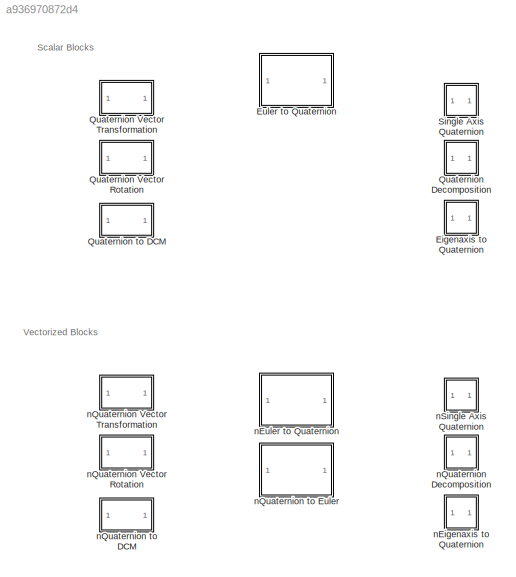
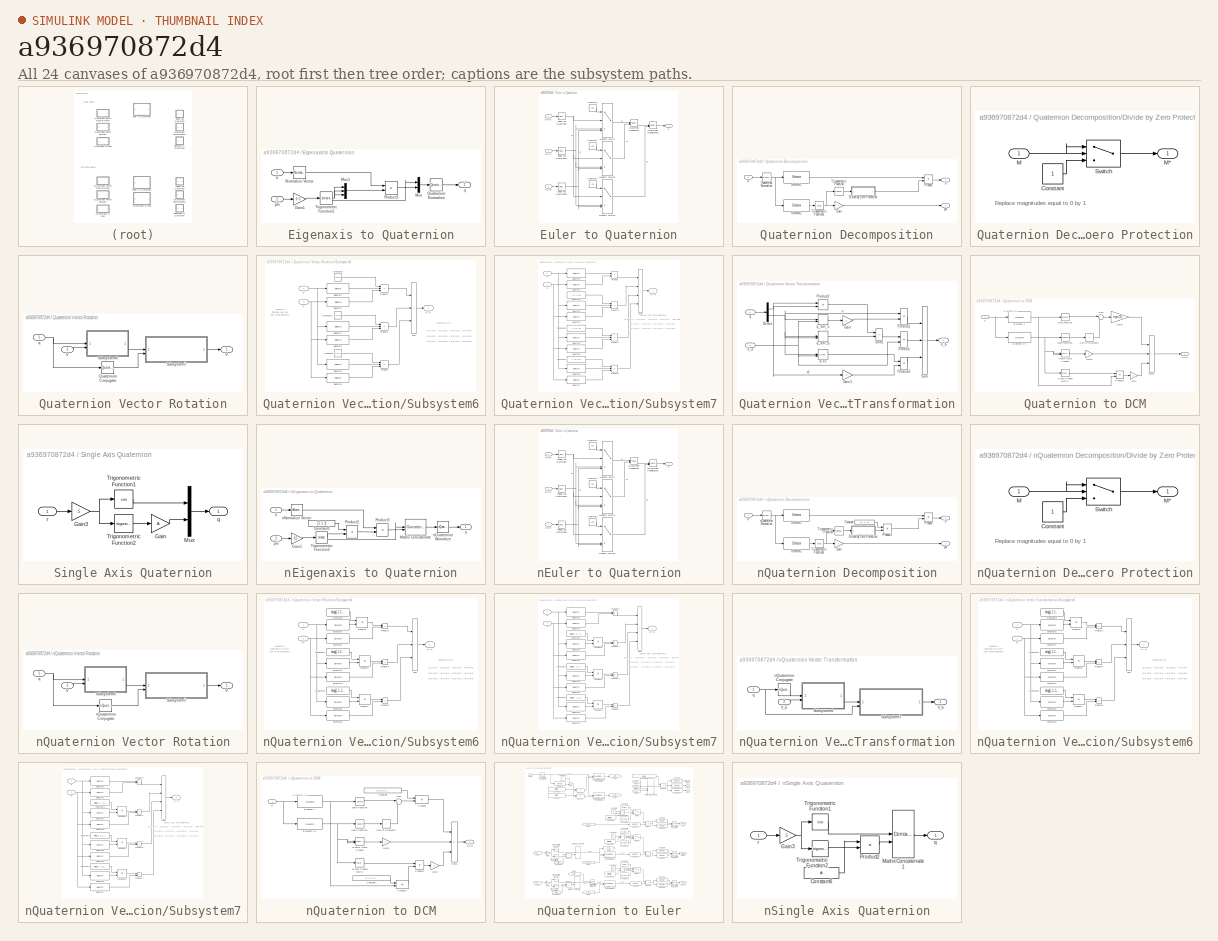
[diagram: thumbnail index - all 24 canvases of the model, root first then tree order]
MODEL slx_a936970872d4
KIND library
CONFIG AbsTol = auto
CONFIG EnableMultiTasking = on
CONFIG FixedStep = auto
CONFIG MaxStep = auto
CONFIG MinStep = auto
CONFIG RelTol = 1e-3
CONFIG SampleTimeConstraint = Unconstrained
CONFIG SolverName = ode45
CONFIG StartTime = 0.0
CONFIG StopTime = 10.0
BLOCK [SubSystem] Eigenaxis to Quaternion
BLOCK [Gain] Eigenaxis to Quaternion/Gain1
  Gain = 0.5
BLOCK [Mux] Eigenaxis to Quaternion/Mux
  DisplayOption = bar
  Inputs = 2
BLOCK [Mux] Eigenaxis to Quaternion/Mux1
  DisplayOption = bar
  Inputs = 3
BLOCK [Reference] Eigenaxis to Quaternion/Normalize Vector  REF=libMathOperations/Normalize Vector
  SourceBlock = libMathOperations/Normalize Vector
  SourceType = Normalize Vector
BLOCK [Product] Eigenaxis to Quaternion/Product3
  RndMeth = Zero
BLOCK [Reference] Eigenaxis to Quaternion/Quaternion Normalize  REF=libMathOperations/Quaternion Normalize
  SourceBlock = libMathOperations/Quaternion Normalize
  SourceType = Quaternion Normalize (1-D)
BLOCK [Trigonometry] Eigenaxis to Quaternion/Trigonometric Function2
  Operator = sincos
BLOCK [Inport] Eigenaxis to Quaternion/V
BLOCK [Inport] Eigenaxis to Quaternion/phi
  Port = 2
BLOCK [Outport] Eigenaxis to Quaternion/q
BLOCK [SubSystem] Euler to Quaternion
BLOCK [Constant] Euler to Quaternion/Constant1
  Value = irt1
  VectorParams1D = off
BLOCK [Constant] Euler to Quaternion/Constant2
  Value = irt2
  VectorParams1D = off
BLOCK [Constant] Euler to Quaternion/Constant3
  Value = irt3
  VectorParams1D = off
BLOCK [MultiPortSwitch] Euler to Quaternion/Multiport Switch
  InputSameDT = off
  SaturateOnIntegerOverflow = off
BLOCK [MultiPortSwitch] Euler to Quaternion/Multiport Switch1
  InputSameDT = off
  SaturateOnIntegerOverflow = off
BLOCK [MultiPortSwitch] Euler to Quaternion/Multiport Switch2
  InputSameDT = off
  SaturateOnIntegerOverflow = off
BLOCK [Reference] Euler to Quaternion/Quaternion Multiplication  REF=libMathOperations/Quaternion Multiplication
  SourceBlock = libMathOperations/Quaternion Multiplication
  SourceType = Quaternion Multiplication (1-D)
BLOCK [Reference] Euler to Quaternion/Quaternion Multiplication1  REF=libMathOperations/Quaternion Multiplication
  SourceBlock = libMathOperations/Quaternion Multiplication
  SourceType = Quaternion Multiplication (1-D)
BLOCK [Inport] Euler to Quaternion/ROTX
BLOCK [Inport] Euler to Quaternion/ROTY
  Port = 2
BLOCK [Inport] Euler to Quaternion/ROTZ
  Port = 3
BLOCK [Reference] Euler to Quaternion/Single Axis Quaternion  REF=$bdroot/Single Axis Quaternion
  SourceBlock = $bdroot/Single Axis Quaternion
  SourceType = Quaternion Single Axis Rotation (1-D)
BLOCK [Reference] Euler to Quaternion/Single Axis Quaternion1  REF=$bdroot/Single Axis Quaternion
  SourceBlock = $bdroot/Single Axis Quaternion
  SourceType = Quaternion Single Axis Rotation (1-D)
BLOCK [Reference] Euler to Quaternion/Single Axis Quaternion2  REF=$bdroot/Single Axis Quaternion
  SourceBlock = $bdroot/Single Axis Quaternion
  SourceType = Quaternion Single Axis Rotation (1-D)
BLOCK [Outport] Euler to Quaternion/q
BLOCK [SubSystem] Quaternion Decomposition
BLOCK [SubSystem] Quaternion Decomposition/Divide by Zero Protection
BLOCK [Constant] Quaternion Decomposition/Divide by Zero Protection/Constant
BLOCK [Inport] Quaternion Decomposition/Divide by Zero Protection/M
BLOCK [Outport] Quaternion Decomposition/Divide by Zero Protection/M*
BLOCK [Switch] Quaternion Decomposition/Divide by Zero Protection/Switch
  Criteria = u2 ~= 0
  InputSameDT = off
  SaturateOnIntegerOverflow = off
BLOCK [Gain] Quaternion Decomposition/Gain
  Gain = 2
BLOCK [Product] Quaternion Decomposition/Product
  Inputs = */
  RndMeth = Zero
BLOCK [Reference] Quaternion Decomposition/Quaternion Normalize  REF=libMathOperations/Quaternion Normalize
  SourceBlock = libMathOperations/Quaternion Normalize
  SourceType = Quaternion Normalize (1-D)
BLOCK [Selector] Quaternion Decomposition/Selector1
  IndexOptions = Index vector (dialog)
  Indices = [2 3 4]
  InputPortWidth = 4
  OutputSizes = 1
BLOCK [Selector] Quaternion Decomposition/Selector2
  IndexOptions = Index vector (dialog)
  Indices = 1
  InputPortWidth = 4
  OutputSizes = 1
BLOCK [Trigonometry] Quaternion Decomposition/Trigonometric Function
BLOCK [Trigonometry] Quaternion Decomposition/Trigonometric Function1
  Operator = acos
BLOCK [Outport] Quaternion Decomposition/V
BLOCK [Outport] Quaternion Decomposition/phi
  Port = 2
BLOCK [Inport] Quaternion Decomposition/q
BLOCK [SubSystem] Quaternion Vector Rotation
BLOCK [Reference] Quaternion Vector Rotation/Quaternion Conjugate  REF=libMathOperations/Quaternion Conjugate
  SourceBlock = libMathOperations/Quaternion Conjugate
  SourceType = Quaternion Conjugate (1-D)
BLOCK [SubSystem] Quaternion Vector Rotation/Subsystem6
BLOCK [Constant] Quaternion Vector Rotation/Subsystem6/Constant
  Value = [-1 -1 1 -1]
BLOCK [Constant] Quaternion Vector Rotation/Subsystem6/Constant1
  Value = [-1 1 -1 1]
BLOCK [Constant] Quaternion Vector Rotation/Subsystem6/Constant2
  Value = [-1 1 1 1]
BLOCK [Product] Quaternion Vector Rotation/Subsystem6/Product
  Inputs = 3
  RndMeth = Zero
BLOCK [Product] Quaternion Vector Rotation/Subsystem6/Product1
  Inputs = 3
  RndMeth = Zero
BLOCK [Product] Quaternion Vector Rotation/Subsystem6/Product2
  Inputs = 3
  RndMeth = Zero
BLOCK [Selector] Quaternion Vector Rotation/Subsystem6/Selector1
  IndexOptions = Index vector (dialog)
  Indices = [1 1 2 3]
  InputPortWidth = 3
  OutputSizes = 1
BLOCK [Selector] Quaternion Vector Rotation/Subsystem6/Selector2
  IndexOptions = Index vector (dialog)
  Indices = [2 1 1 1]
  InputPortWidth = 4
  OutputSizes = 1
BLOCK [Selector] Quaternion Vector Rotation/Subsystem6/Selector3
  IndexOptions = Index vector (dialog)
  Indices = [2 3 3 2]
  InputPortWidth = 3
  OutputSizes = 1
BLOCK [Selector] Quaternion Vector Rotation/Subsystem6/Selector4
  IndexOptions = Index vector (dialog)
  Indices = [3 3 2 2]
  InputPortWidth = 4
  OutputSizes = 1
BLOCK [Selector] Quaternion Vector Rotation/Subsystem6/Selector5
  IndexOptions = Index vector (dialog)
  Indices = [3 2 1 1]
  InputPortWidth = 3
  OutputSizes = 1
BLOCK [Selector] Quaternion Vector Rotation/Subsystem6/Selector6
  IndexOptions = Index vector (dialog)
  Indices = [4 4 4 3]
  InputPortWidth = 4
  OutputSizes = 1
BLOCK [Sum] Quaternion Vector Rotation/Subsystem6/Sum
  IconShape = rectangular
  Inputs = +++
BLOCK [Inport] Quaternion Vector Rotation/Subsystem6/p
BLOCK [Outport] Quaternion Vector Rotation/Subsystem6/p * q
BLOCK [Inport] Quaternion Vector Rotation/Subsystem6/q
  Port = 2
BLOCK [SubSystem] Quaternion Vector Rotation/Subsystem7
BLOCK [Constant] Quaternion Vector Rotation/Subsystem7/Constant1
  Value = [ 1 -1 1]
BLOCK [Constant] Quaternion Vector Rotation/Subsystem7/Constant2
  Value = [ -1 1 1]
BLOCK [Constant] Quaternion Vector Rotation/Subsystem7/Constant3
  Value = [ 1 1 -1]
BLOCK [Product] Quaternion Vector Rotation/Subsystem7/Product
  RndMeth = Zero
BLOCK [Product] Quaternion Vector Rotation/Subsystem7/Product1
  Inputs = 3
  RndMeth = Zero
BLOCK [Product] Quaternion Vector Rotation/Subsystem7/Product2
  Inputs = 3
  RndMeth = Zero
BLOCK [Product] Quaternion Vector Rotation/Subsystem7/Product3
  Inputs = 3
  RndMeth = Zero
BLOCK [Selector] Quaternion Vector Rotation/Subsystem7/Selector1
  IndexOptions = Index vector (dialog)
  Indices = [ 2 3 4]
  InputPortWidth = 4
  OutputSizes = 1
BLOCK [Selector] Quaternion Vector Rotation/Subsystem7/Selector2
  IndexOptions = Index vector (dialog)
  Indices = [ 1 1 1]
  InputPortWidth = 4
  OutputSizes = 1
BLOCK [Selector] Quaternion Vector Rotation/Subsystem7/Selector3
  IndexOptions = Index vector (dialog)
  Indices = [ 1 4 3]
  InputPortWidth = 4
  OutputSizes = 1
BLOCK [Selector] Quaternion Vector Rotation/Subsystem7/Selector4
  IndexOptions = Index vector (dialog)
  Indices = [ 2 2 2]
  InputPortWidth = 4
  OutputSizes = 1
BLOCK [Selector] Quaternion Vector Rotation/Subsystem7/Selector5
  IndexOptions = Index vector (dialog)
  Indices = [ 4 1 2]
  InputPortWidth = 4
  OutputSizes = 1
BLOCK [Selector] Quaternion Vector Rotation/Subsystem7/Selector6
  IndexOptions = Index vector (dialog)
  Indices = [ 3 3 3]
  InputPortWidth = 4
  OutputSizes = 1
BLOCK [Selector] Quaternion Vector Rotation/Subsystem7/Selector7
  IndexOptions = Index vector (dialog)
  Indices = [ 3 2 1]
  InputPortWidth = 4
  OutputSizes = 1
BLOCK [Selector] Quaternion Vector Rotation/Subsystem7/Selector8
  IndexOptions = Index vector (dialog)
  Indices = [4 4 4]
  InputPortWidth = 4
  OutputSizes = 1
BLOCK [Sum] Quaternion Vector Rotation/Subsystem7/Sum
  IconShape = rectangular
  Inputs = ++++
BLOCK [Inport] Quaternion Vector Rotation/Subsystem7/p
BLOCK [Outport] Quaternion Vector Rotation/Subsystem7/p * q
BLOCK [Inport] Quaternion Vector Rotation/Subsystem7/q
  Port = 2
BLOCK [Inport] Quaternion Vector Rotation/V
  Port = 2
BLOCK [Outport] Quaternion Vector Rotation/V`
BLOCK [Inport] Quaternion Vector Rotation/q
BLOCK [SubSystem] Quaternion Vector Transformation
BLOCK [Demux] Quaternion Vector Transformation/Demux
  Outputs = [1 3]
BLOCK [Gain] Quaternion Vector Transformation/Gain
  Gain = 2
BLOCK [Gain] Quaternion Vector Transformation/Gain1
  Gain = 2
BLOCK [Product] Quaternion Vector Transformation/Product
  RndMeth = Zero
BLOCK [Product] Quaternion Vector Transformation/Product1
  RndMeth = Zero
BLOCK [Product] Quaternion Vector Transformation/Product2
  RndMeth = Zero
BLOCK [Product] Quaternion Vector Transformation/Product3
  RndMeth = Zero
BLOCK [Sum] Quaternion Vector Transformation/Sum
  IconShape = rectangular
  Inputs = ++-
BLOCK [Sum] Quaternion Vector Transformation/Sum1
  IconShape = rectangular
  Inputs = +-
BLOCK [Inport] Quaternion Vector Transformation/V_a
  Port = 2
BLOCK [Outport] Quaternion Vector Transformation/V_b
BLOCK [Inport] Quaternion Vector Transformation/q
BLOCK [Reference] Quaternion Vector Transformation/q x u  REF=libMathOperations/Cross Product
  SourceBlock = libMathOperations/Cross Product
  SourceType = Cross Product (1-D)
BLOCK [DotProduct] Quaternion Vector Transformation/q_dot_q
  OutDataTypeStr = Inherit: Inherit via internal rule
BLOCK [DotProduct] Quaternion Vector Transformation/q_dot_u
  OutDataTypeStr = Inherit: Inherit via internal rule
BLOCK [SubSystem] Quaternion to DCM
BLOCK [Reference] Quaternion to DCM/Cross Product Matrix  REF=libMathOperations/Cross Product Matrix
  SourceBlock = libMathOperations/Cross Product Matrix
  SourceType = Cross Product Matrix
BLOCK [Outport] Quaternion to DCM/DCM
  PortDimensions = [3,3]
BLOCK [Selector] Quaternion to DCM/Element 1
  IndexOptions = Index vector (dialog)
  Indices = [1]
  InputPortWidth = 4
  OutputSizes = 1
BLOCK [Selector] Quaternion to DCM/Element 2-4
  IndexOptions = Index vector (dialog)
  Indices = [2 3 4]
  InputPortWidth = 4
  OutputSizes = 1
BLOCK [Gain] Quaternion to DCM/Gain
  Gain = 2
BLOCK [Gain] Quaternion to DCM/Gain1
  Gain = 2
BLOCK [Gain] Quaternion to DCM/Gain2
  Gain = eye(3)
BLOCK [Math] Quaternion to DCM/Math Function
  Operator = square
  SignedPower = on
BLOCK [Math] Quaternion to DCM/Math Function1
  Operator = square
  SignedPower = on
BLOCK [Product] Quaternion to DCM/Product1
  RndMeth = Zero
BLOCK [Sum] Quaternion to DCM/Sum
  Inputs = |+-
BLOCK [Sum] Quaternion to DCM/Sum of Elements
  IconShape = rectangular
  Inputs = +
BLOCK [Sum] Quaternion to DCM/Sum1
  IconShape = rectangular
  Inputs = ++-
BLOCK [Reference] Quaternion to DCM/Vector Outer Product  REF=libMathOperations/Vector Outer Product
  SourceBlock = libMathOperations/Vector Outer Product
  SourceType = Outer Product (1-D)
BLOCK [Inport] Quaternion to DCM/q
BLOCK [SubSystem] Single Axis Quaternion
BLOCK [Gain] Single Axis Quaternion/Gain
  Gain = A
BLOCK [Gain] Single Axis Quaternion/Gain3
  Gain = .5
BLOCK [Mux] Single Axis Quaternion/Mux
  DisplayOption = bar
  Inputs = 2
BLOCK [Trigonometry] Single Axis Quaternion/Trigonometric Function1
  Operator = cos
BLOCK [Trigonometry] Single Axis Quaternion/Trigonometric Function2
BLOCK [Outport] Single Axis Quaternion/q
BLOCK [Inport] Single Axis Quaternion/r
BLOCK [SubSystem] nEigenaxis to Quaternion
BLOCK [Constant] nEigenaxis to Quaternion/Constant1
  Value = [1; 1; 1]
  VectorParams1D = off
BLOCK [Gain] nEigenaxis to Quaternion/Gain1
  Gain = 0.5
BLOCK [Concatenate] nEigenaxis to Quaternion/Matrix Concatenate
  Mode = Multidimensional array
BLOCK [Product] nEigenaxis to Quaternion/Product2
  Multiplication = Matrix(*)
  RndMeth = Zero
BLOCK [Product] nEigenaxis to Quaternion/Product3
  RndMeth = Zero
BLOCK [Trigonometry] nEigenaxis to Quaternion/Trigonometric Function2
  Operator = sincos
BLOCK [Inport] nEigenaxis to Quaternion/V
  PortDimensions = [3,n]
BLOCK [Reference] nEigenaxis to Quaternion/nNormalize Vector  REF=libMathOperations/nNormalize Vector
  SourceBlock = libMathOperations/nNormalize Vector
  SourceType = nNormalize Vector
BLOCK [Reference] nEigenaxis to Quaternion/nQuaternion Normalize  REF=libMathOperations/nQuaternion Normalize
  SourceBlock = libMathOperations/nQuaternion Normalize
  SourceType = nQuaternion Normalize
BLOCK [Inport] nEigenaxis to Quaternion/phi
  Port = 2
  PortDimensions = [1,n]
BLOCK [Outport] nEigenaxis to Quaternion/q
  PortDimensions = [4,n]
BLOCK [SubSystem] nEuler to Quaternion
BLOCK [Constant] nEuler to Quaternion/Constant1
  Value = irt1
  VectorParams1D = off
BLOCK [Constant] nEuler to Quaternion/Constant2
  Value = irt2
  VectorParams1D = off
BLOCK [Constant] nEuler to Quaternion/Constant3
  Value = irt3
  VectorParams1D = off
BLOCK [MultiPortSwitch] nEuler to Quaternion/Multiport Switch
  InputSameDT = off
  SaturateOnIntegerOverflow = off
BLOCK [MultiPortSwitch] nEuler to Quaternion/Multiport Switch1
  InputSameDT = off
  SaturateOnIntegerOverflow = off
BLOCK [MultiPortSwitch] nEuler to Quaternion/Multiport Switch2
  InputSameDT = off
  SaturateOnIntegerOverflow = off
BLOCK [Inport] nEuler to Quaternion/ROTX
  PortDimensions = [1,n]
BLOCK [Inport] nEuler to Quaternion/ROTY
  Port = 2
  PortDimensions = [1,n]
BLOCK [Inport] nEuler to Quaternion/ROTZ
  Port = 3
  PortDimensions = [1,n]
BLOCK [Reference] nEuler to Quaternion/nQuaternion Multiplication  REF=libMathOperations/nQuaternion Multiplication
  SourceBlock = libMathOperations/nQuaternion Multiplication
  SourceType = nQuaternion Multiplication
BLOCK [Reference] nEuler to Quaternion/nQuaternion Multiplication1  REF=libMathOperations/nQuaternion Multiplication
  SourceBlock = libMathOperations/nQuaternion Multiplication
  SourceType = nQuaternion Multiplication
BLOCK [Reference] nEuler to Quaternion/nSingle Axis Quaternion  REF=$bdroot/nSingle Axis Quaternion
  SourceBlock = $bdroot/nSingle Axis Quaternion
  SourceType = nSingle Axis Quaternion
BLOCK [Reference] nEuler to Quaternion/nSingle Axis Quaternion1  REF=$bdroot/nSingle Axis Quaternion
  SourceBlock = $bdroot/nSingle Axis Quaternion
  SourceType = nSingle Axis Quaternion
BLOCK [Reference] nEuler to Quaternion/nSingle Axis Quaternion2  REF=$bdroot/nSingle Axis Quaternion
  SourceBlock = $bdroot/nSingle Axis Quaternion
  SourceType = nSingle Axis Quaternion
BLOCK [Outport] nEuler to Quaternion/q
  PortDimensions = [4,n]
BLOCK [SubSystem] nQuaternion Decomposition
BLOCK [Constant] nQuaternion Decomposition/Constant
  Value = [1; 1; 1]
  VectorParams1D = off
BLOCK [SubSystem] nQuaternion Decomposition/Divide by Zero Protection
BLOCK [Constant] nQuaternion Decomposition/Divide by Zero Protection/Constant
BLOCK [Inport] nQuaternion Decomposition/Divide by Zero Protection/M
BLOCK [Outport] nQuaternion Decomposition/Divide by Zero Protection/M*
BLOCK [Switch] nQuaternion Decomposition/Divide by Zero Protection/Switch
  Criteria = u2 ~= 0
  InputSameDT = off
  SaturateOnIntegerOverflow = off
  ZeroCross = off
BLOCK [Gain] nQuaternion Decomposition/Gain
  Gain = 2
BLOCK [Product] nQuaternion Decomposition/Product
  Inputs = */
  RndMeth = Zero
BLOCK [Product] nQuaternion Decomposition/Product1
  Multiplication = Matrix(*)
  RndMeth = Zero
BLOCK [Selector] nQuaternion Decomposition/Selector1
  IndexOptions = Index vector (dialog),Select all
  Indices = [2 3 4],1
  InputPortWidth = 3
  NumberOfDimensions = 2
  OutputSizes = 1,1
BLOCK [Selector] nQuaternion Decomposition/Selector2
  IndexOptions = Index vector (dialog),Select all
  Indices = 1,1
  InputPortWidth = 3
  NumberOfDimensions = 2
  OutputSizes = 1,1
BLOCK [Trigonometry] nQuaternion Decomposition/Trigonometric Function
BLOCK [Trigonometry] nQuaternion Decomposition/Trigonometric Function1
  Operator = acos
BLOCK [Outport] nQuaternion Decomposition/V
  PortDimensions = [3,n]
BLOCK [Reference] nQuaternion Decomposition/nQuaternion Normalize  REF=libMathOperations/nQuaternion Normalize
  SourceBlock = libMathOperations/nQuaternion Normalize
  SourceType = nQuaternion Normalize
BLOCK [Outport] nQuaternion Decomposition/phi
  Port = 2
  PortDimensions = [1,n]
BLOCK [Inport] nQuaternion Decomposition/q
  PortDimensions = [4,n]
BLOCK [SubSystem] nQuaternion Vector Rotation
BLOCK [SubSystem] nQuaternion Vector Rotation/Subsystem6
BLOCK [Constant] nQuaternion Vector Rotation/Subsystem6/Constant1
  Value = diag([-1 1 -1 1])
  VectorParams1D = off
BLOCK [Constant] nQuaternion Vector Rotation/Subsystem6/Constant3
  Value = diag([-1 -1 1 -1])
  VectorParams1D = off
BLOCK [Constant] nQuaternion Vector Rotation/Subsystem6/Constant4
  Value = diag([-1 1 1 1])
  VectorParams1D = off
BLOCK [Product] nQuaternion Vector Rotation/Subsystem6/Product1
  Multiplication = Matrix(*)
  RndMeth = Zero
BLOCK [Product] nQuaternion Vector Rotation/Subsystem6/Product3
  RndMeth = Zero
BLOCK [Product] nQuaternion Vector Rotation/Subsystem6/Product4
  RndMeth = Zero
BLOCK [Product] nQuaternion Vector Rotation/Subsystem6/Product5
  Multiplication = Matrix(*)
  RndMeth = Zero
BLOCK [Product] nQuaternion Vector Rotation/Subsystem6/Product6
  RndMeth = Zero
BLOCK [Product] nQuaternion Vector Rotation/Subsystem6/Product8
  Multiplication = Matrix(*)
  RndMeth = Zero
BLOCK [Selector] nQuaternion Vector Rotation/Subsystem6/Selector1
  IndexOptions = Index vector (dialog),Select all
  Indices = [1 1 2 3],1
  InputPortWidth = 3
  NumberOfDimensions = 2
  OutputSizes = 1,1
BLOCK [Selector] nQuaternion Vector Rotation/Subsystem6/Selector2
  IndexOptions = Index vector (dialog),Select all
  Indices = [2 1 1 1],1
  InputPortWidth = 3
  NumberOfDimensions = 2
  OutputSizes = 1,1
BLOCK [Selector] nQuaternion Vector Rotation/Subsystem6/Selector3
  IndexOptions = Index vector (dialog),Select all
  Indices = [2 3 3 2],1
  InputPortWidth = 3
  NumberOfDimensions = 2
  OutputSizes = 1,1
BLOCK [Selector] nQuaternion Vector Rotation/Subsystem6/Selector4
  IndexOptions = Index vector (dialog),Select all
  Indices = [3 3 2 2],1
  InputPortWidth = 3
  NumberOfDimensions = 2
  OutputSizes = 1,1
BLOCK [Selector] nQuaternion Vector Rotation/Subsystem6/Selector5
  IndexOptions = Index vector (dialog),Select all
  Indices = [3 2 1 1],1
  InputPortWidth = 3
  NumberOfDimensions = 2
  OutputSizes = 1,1
BLOCK [Selector] nQuaternion Vector Rotation/Subsystem6/Selector6
  IndexOptions = Index vector (dialog),Select all
  Indices = [4 4 4 3],1
  InputPortWidth = 3
  NumberOfDimensions = 2
  OutputSizes = 1,1
BLOCK [Sum] nQuaternion Vector Rotation/Subsystem6/Sum
  IconShape = rectangular
  Inputs = +++
BLOCK [Inport] nQuaternion Vector Rotation/Subsystem6/p
  PortDimensions = [4,nQuat]
BLOCK [Outport] nQuaternion Vector Rotation/Subsystem6/p * q
  PortDimensions = [4,nQuat]
BLOCK [Inport] nQuaternion Vector Rotation/Subsystem6/q
  Port = 2
  PortDimensions = [3,nQuat]
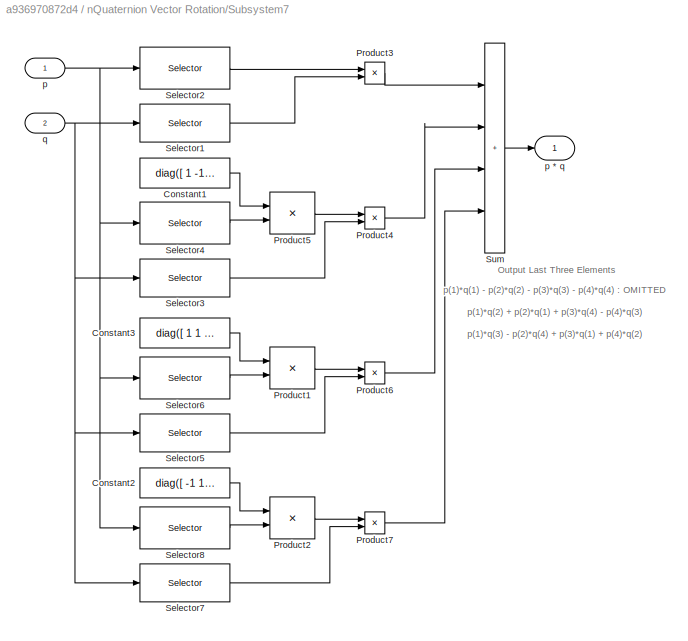
BLOCK [SubSystem] nQuaternion Vector Rotation/Subsystem7
BLOCK [Constant] nQuaternion Vector Rotation/Subsystem7/Constant1
  Value = diag([ 1 -1 1])
  VectorParams1D = off
BLOCK [Constant] nQuaternion Vector Rotation/Subsystem7/Constant2
  Value = diag([ -1 1 1])
  VectorParams1D = off
BLOCK [Constant] nQuaternion Vector Rotation/Subsystem7/Constant3
  Value = diag([ 1 1 -1])
  VectorParams1D = off
BLOCK [Product] nQuaternion Vector Rotation/Subsystem7/Product1
  Multiplication = Matrix(*)
  RndMeth = Zero
BLOCK [Product] nQuaternion Vector Rotation/Subsystem7/Product2
  Multiplication = Matrix(*)
  RndMeth = Zero
BLOCK [Product] nQuaternion Vector Rotation/Subsystem7/Product3
  RndMeth = Zero
BLOCK [Product] nQuaternion Vector Rotation/Subsystem7/Product4
  RndMeth = Zero
BLOCK [Product] nQuaternion Vector Rotation/Subsystem7/Product5
  Multiplication = Matrix(*)
  RndMeth = Zero
BLOCK [Product] nQuaternion Vector Rotation/Subsystem7/Product6
  RndMeth = Zero
BLOCK [Product] nQuaternion Vector Rotation/Subsystem7/Product7
  RndMeth = Zero
BLOCK [Selector] nQuaternion Vector Rotation/Subsystem7/Selector1
  IndexOptions = Index vector (dialog),Select all
  Indices = [ 2 3 4],1
  InputPortWidth = 3
  NumberOfDimensions = 2
  OutputSizes = 1,1
BLOCK [Selector] nQuaternion Vector Rotation/Subsystem7/Selector2
  IndexOptions = Index vector (dialog),Select all
  Indices = [ 1 1 1],1
  InputPortWidth = 3
  NumberOfDimensions = 2
  OutputSizes = 1,1
BLOCK [Selector] nQuaternion Vector Rotation/Subsystem7/Selector3
  IndexOptions = Index vector (dialog),Select all
  Indices = [ 1 4 3],1
  InputPortWidth = 3
  NumberOfDimensions = 2
  OutputSizes = 1,1
BLOCK [Selector] nQuaternion Vector Rotation/Subsystem7/Selector4
  IndexOptions = Index vector (dialog),Select all
  Indices = [ 2 2 2],1
  InputPortWidth = 3
  NumberOfDimensions = 2
  OutputSizes = 1,1
BLOCK [Selector] nQuaternion Vector Rotation/Subsystem7/Selector5
  IndexOptions = Index vector (dialog),Select all
  Indices = [ 4 1 2],1
  InputPortWidth = 3
  NumberOfDimensions = 2
  OutputSizes = 1,1
BLOCK [Selector] nQuaternion Vector Rotation/Subsystem7/Selector6
  IndexOptions = Index vector (dialog),Select all
  Indices = [ 3 3 3],1
  InputPortWidth = 3
  NumberOfDimensions = 2
  OutputSizes = 1,1
BLOCK [Selector] nQuaternion Vector Rotation/Subsystem7/Selector7
  IndexOptions = Index vector (dialog),Select all
  Indices = [ 3 2 1],1
  InputPortWidth = 3
  NumberOfDimensions = 2
  OutputSizes = 1,1
BLOCK [Selector] nQuaternion Vector Rotation/Subsystem7/Selector8
  IndexOptions = Index vector (dialog),Select all
  Indices = [4 4 4],1
  InputPortWidth = 3
  NumberOfDimensions = 2
  OutputSizes = 1,1
BLOCK [Sum] nQuaternion Vector Rotation/Subsystem7/Sum
  IconShape = rectangular
  Inputs = ++++
BLOCK [Inport] nQuaternion Vector Rotation/Subsystem7/p
  PortDimensions = [4,nQuat]
BLOCK [Outport] nQuaternion Vector Rotation/Subsystem7/p * q
  PortDimensions = [3,nQuat]
BLOCK [Inport] nQuaternion Vector Rotation/Subsystem7/q
  Port = 2
  PortDimensions = [4,nQuat]
BLOCK [Inport] nQuaternion Vector Rotation/V
  Port = 2
  PortDimensions = [3,n]
BLOCK [Outport] nQuaternion Vector Rotation/V`
  PortDimensions = [3,n]
BLOCK [Reference] nQuaternion Vector Rotation/nQuaternion Conjugate  REF=libMathOperations/nQuaternion Conjugate
  SourceBlock = libMathOperations/nQuaternion Conjugate
  SourceType = nQuaternion Conjugate
BLOCK [Inport] nQuaternion Vector Rotation/q
  PortDimensions = [4,n]
BLOCK [SubSystem] nQuaternion Vector Transformation
BLOCK [SubSystem] nQuaternion Vector Transformation/Subsystem6
BLOCK [Constant] nQuaternion Vector Transformation/Subsystem6/Constant1
  Value = diag([-1 1 -1 1])
  VectorParams1D = off
BLOCK [Constant] nQuaternion Vector Transformation/Subsystem6/Constant3
  Value = diag([-1 -1 1 -1])
  VectorParams1D = off
BLOCK [Constant] nQuaternion Vector Transformation/Subsystem6/Constant4
  Value = diag([-1 1 1 1])
  VectorParams1D = off
BLOCK [Product] nQuaternion Vector Transformation/Subsystem6/Product1
  Multiplication = Matrix(*)
  RndMeth = Zero
BLOCK [Product] nQuaternion Vector Transformation/Subsystem6/Product3
  RndMeth = Zero
BLOCK [Product] nQuaternion Vector Transformation/Subsystem6/Product4
  RndMeth = Zero
BLOCK [Product] nQuaternion Vector Transformation/Subsystem6/Product5
  Multiplication = Matrix(*)
  RndMeth = Zero
BLOCK [Product] nQuaternion Vector Transformation/Subsystem6/Product6
  RndMeth = Zero
BLOCK [Product] nQuaternion Vector Transformation/Subsystem6/Product8
  Multiplication = Matrix(*)
  RndMeth = Zero
BLOCK [Selector] nQuaternion Vector Transformation/Subsystem6/Selector1
  IndexOptions = Index vector (dialog),Select all
  Indices = [1 1 2 3],1
  InputPortWidth = 3
  NumberOfDimensions = 2
  OutputSizes = 1,1
BLOCK [Selector] nQuaternion Vector Transformation/Subsystem6/Selector2
  IndexOptions = Index vector (dialog),Select all
  Indices = [2 1 1 1],1
  InputPortWidth = 3
  NumberOfDimensions = 2
  OutputSizes = 1,1
BLOCK [Selector] nQuaternion Vector Transformation/Subsystem6/Selector3
  IndexOptions = Index vector (dialog),Select all
  Indices = [2 3 3 2],1
  InputPortWidth = 3
  NumberOfDimensions = 2
  OutputSizes = 1,1
BLOCK [Selector] nQuaternion Vector Transformation/Subsystem6/Selector4
  IndexOptions = Index vector (dialog),Select all
  Indices = [3 3 2 2],1
  InputPortWidth = 3
  NumberOfDimensions = 2
  OutputSizes = 1,1
BLOCK [Selector] nQuaternion Vector Transformation/Subsystem6/Selector5
  IndexOptions = Index vector (dialog),Select all
  Indices = [3 2 1 1],1
  InputPortWidth = 3
  NumberOfDimensions = 2
  OutputSizes = 1,1
BLOCK [Selector] nQuaternion Vector Transformation/Subsystem6/Selector6
  IndexOptions = Index vector (dialog),Select all
  Indices = [4 4 4 3],1
  InputPortWidth = 3
  NumberOfDimensions = 2
  OutputSizes = 1,1
BLOCK [Sum] nQuaternion Vector Transformation/Subsystem6/Sum
  IconShape = rectangular
  Inputs = +++
BLOCK [Inport] nQuaternion Vector Transformation/Subsystem6/p
  PortDimensions = [4,nQuat]
BLOCK [Outport] nQuaternion Vector Transformation/Subsystem6/p * q
  PortDimensions = [4,nQuat]
BLOCK [Inport] nQuaternion Vector Transformation/Subsystem6/q
  Port = 2
  PortDimensions = [3,nQuat]
BLOCK [SubSystem] nQuaternion Vector Transformation/Subsystem7
BLOCK [Constant] nQuaternion Vector Transformation/Subsystem7/Constant1
  Value = diag([ 1 -1 1])
  VectorParams1D = off
BLOCK [Constant] nQuaternion Vector Transformation/Subsystem7/Constant2
  Value = diag([ -1 1 1])
  VectorParams1D = off
BLOCK [Constant] nQuaternion Vector Transformation/Subsystem7/Constant3
  Value = diag([ 1 1 -1])
  VectorParams1D = off
BLOCK [Product] nQuaternion Vector Transformation/Subsystem7/Product1
  Multiplication = Matrix(*)
  RndMeth = Zero
BLOCK [Product] nQuaternion Vector Transformation/Subsystem7/Product2
  Multiplication = Matrix(*)
  RndMeth = Zero
BLOCK [Product] nQuaternion Vector Transformation/Subsystem7/Product3
  RndMeth = Zero
BLOCK [Product] nQuaternion Vector Transformation/Subsystem7/Product4
  RndMeth = Zero
BLOCK [Product] nQuaternion Vector Transformation/Subsystem7/Product5
  Multiplication = Matrix(*)
  RndMeth = Zero
BLOCK [Product] nQuaternion Vector Transformation/Subsystem7/Product6
  RndMeth = Zero
BLOCK [Product] nQuaternion Vector Transformation/Subsystem7/Product7
  RndMeth = Zero
BLOCK [Selector] nQuaternion Vector Transformation/Subsystem7/Selector1
  IndexOptions = Index vector (dialog),Select all
  Indices = [ 2 3 4],1
  InputPortWidth = 3
  NumberOfDimensions = 2
  OutputSizes = 1,1
BLOCK [Selector] nQuaternion Vector Transformation/Subsystem7/Selector2
  IndexOptions = Index vector (dialog),Select all
  Indices = [ 1 1 1],1
  InputPortWidth = 3
  NumberOfDimensions = 2
  OutputSizes = 1,1
BLOCK [Selector] nQuaternion Vector Transformation/Subsystem7/Selector3
  IndexOptions = Index vector (dialog),Select all
  Indices = [ 1 4 3],1
  InputPortWidth = 3
  NumberOfDimensions = 2
  OutputSizes = 1,1
BLOCK [Selector] nQuaternion Vector Transformation/Subsystem7/Selector4
  IndexOptions = Index vector (dialog),Select all
  Indices = [ 2 2 2],1
  InputPortWidth = 3
  NumberOfDimensions = 2
  OutputSizes = 1,1
BLOCK [Selector] nQuaternion Vector Transformation/Subsystem7/Selector5
  IndexOptions = Index vector (dialog),Select all
  Indices = [ 4 1 2],1
  InputPortWidth = 3
  NumberOfDimensions = 2
  OutputSizes = 1,1
BLOCK [Selector] nQuaternion Vector Transformation/Subsystem7/Selector6
  IndexOptions = Index vector (dialog),Select all
  Indices = [ 3 3 3],1
  InputPortWidth = 3
  NumberOfDimensions = 2
  OutputSizes = 1,1
BLOCK [Selector] nQuaternion Vector Transformation/Subsystem7/Selector7
  IndexOptions = Index vector (dialog),Select all
  Indices = [ 3 2 1],1
  InputPortWidth = 3
  NumberOfDimensions = 2
  OutputSizes = 1,1
BLOCK [Selector] nQuaternion Vector Transformation/Subsystem7/Selector8
  IndexOptions = Index vector (dialog),Select all
  Indices = [4 4 4],1
  InputPortWidth = 3
  NumberOfDimensions = 2
  OutputSizes = 1,1
BLOCK [Sum] nQuaternion Vector Transformation/Subsystem7/Sum
  IconShape = rectangular
  Inputs = ++++
BLOCK [Inport] nQuaternion Vector Transformation/Subsystem7/p
  PortDimensions = [4,nQuat]
BLOCK [Outport] nQuaternion Vector Transformation/Subsystem7/p * q
  PortDimensions = [3,nQuat]
BLOCK [Inport] nQuaternion Vector Transformation/Subsystem7/q
  Port = 2
  PortDimensions = [4,nQuat]
BLOCK [Inport] nQuaternion Vector Transformation/V_a
  Port = 2
  PortDimensions = [3,n]
BLOCK [Outport] nQuaternion Vector Transformation/V_b
  PortDimensions = [3,n]
BLOCK [Reference] nQuaternion Vector Transformation/nQuaternion Conjugate  REF=libMathOperations/nQuaternion Conjugate
  SourceBlock = libMathOperations/nQuaternion Conjugate
  SourceType = nQuaternion Conjugate
BLOCK [Inport] nQuaternion Vector Transformation/q
  PortDimensions = [4,n]
BLOCK [SubSystem] nQuaternion to DCM
BLOCK [Constant] nQuaternion to DCM/Constant
  Value = [1 0 0 0 1 0 0 0 1]'
  VectorParams1D = off
BLOCK [Constant] nQuaternion to DCM/Constant1
  Value = [1 1 1 1 1 1 1 1 1]'
  VectorParams1D = off
BLOCK [Outport] nQuaternion to DCM/DCM
  PortDimensions = [9,n]
BLOCK [Selector] nQuaternion to DCM/Element 1
  IndexOptions = Index vector (dialog),Select all
  Indices = [1],1
  InputPortWidth = 3
  NumberOfDimensions = 2
  OutputSizes = 1,1
BLOCK [Selector] nQuaternion to DCM/Element 2-4
  IndexOptions = Index vector (dialog),Select all
  Indices = [2 3 4],1
  InputPortWidth = 3
  NumberOfDimensions = 2
  OutputSizes = 1,1
BLOCK [Gain] nQuaternion to DCM/Gain
  Gain = 2
BLOCK [Gain] nQuaternion to DCM/Gain1
  Gain = 2
BLOCK [Math] nQuaternion to DCM/Math Function
  Operator = square
  SignedPower = on
BLOCK [Math] nQuaternion to DCM/Math Function1
  Operator = square
  SignedPower = on
BLOCK [Product] nQuaternion to DCM/Product
  Multiplication = Matrix(*)
  RndMeth = Zero
BLOCK [Product] nQuaternion to DCM/Product1
  RndMeth = Zero
BLOCK [Product] nQuaternion to DCM/Product3
  Multiplication = Matrix(*)
  RndMeth = Zero
BLOCK [Sum] nQuaternion to DCM/Sum
  Inputs = |+-
BLOCK [Sum] nQuaternion to DCM/Sum of Elements
  CollapseMode = Specified dimension
  IconShape = rectangular
  Inputs = +
BLOCK [Sum] nQuaternion to DCM/Sum1
  IconShape = rectangular
  Inputs = ++-
BLOCK [Reference] nQuaternion to DCM/nCross Product Matrix  REF=libMathOperations/nCross Product Matrix
  SourceBlock = libMathOperations/nCross Product Matrix
  SourceType = nCross Product Matrix
BLOCK [Reference] nQuaternion to DCM/nVector Outer Product  REF=libMathOperations/nVector Outer Product
  SourceBlock = libMathOperations/nVector Outer Product
  SourceType = nOuter Product
BLOCK [Inport] nQuaternion to DCM/q
  PortDimensions = [4,n]
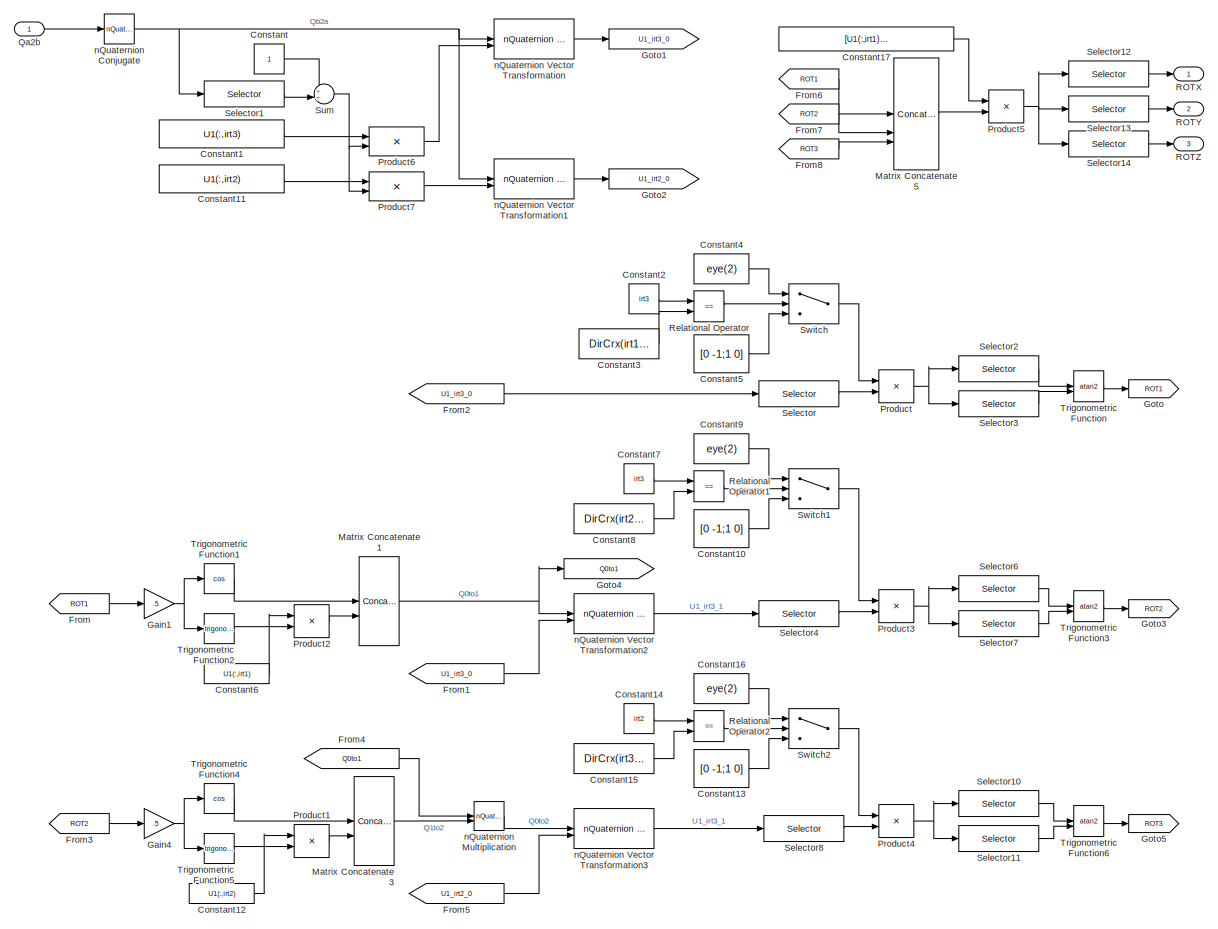
[diagram: nQuaternion to Euler - part 1/1, most of the canvas]
BLOCK [SubSystem] nQuaternion to Euler
BLOCK [Constant] nQuaternion to Euler/Constant
BLOCK [Constant] nQuaternion to Euler/Constant1
  Value = U1(:,irt3)
  VectorParams1D = off
BLOCK [Constant] nQuaternion to Euler/Constant10
  Value = [0 -1;1 0]
  VectorParams1D = off
BLOCK [Constant] nQuaternion to Euler/Constant11
  Value = U1(:,irt2)
  VectorParams1D = off
BLOCK [Constant] nQuaternion to Euler/Constant12
  Value = U1(:,irt2)
  VectorParams1D = off
BLOCK [Constant] nQuaternion to Euler/Constant13
  Value = [0 -1;1 0]
  VectorParams1D = off
BLOCK [Constant] nQuaternion to Euler/Constant14
  Value = irt2
  VectorParams1D = off
BLOCK [Constant] nQuaternion to Euler/Constant15
  Value = DirCrx(irt3,1)
  VectorParams1D = off
BLOCK [Constant] nQuaternion to Euler/Constant16
  Value = eye(2)
  VectorParams1D = off
BLOCK [Constant] nQuaternion to Euler/Constant17
  Value = [U1(:,irt1) U1(:,irt2) U1(:,irt3)]
  VectorParams1D = off
BLOCK [Constant] nQuaternion to Euler/Constant2
  Value = irt3
  VectorParams1D = off
BLOCK [Constant] nQuaternion to Euler/Constant3
  Value = DirCrx(irt1,1)
  VectorParams1D = off
BLOCK [Constant] nQuaternion to Euler/Constant4
  Value = eye(2)
  VectorParams1D = off
BLOCK [Constant] nQuaternion to Euler/Constant5
  Value = [0 -1;1 0]
  VectorParams1D = off
BLOCK [Constant] nQuaternion to Euler/Constant6
  Value = U1(:,irt1)
  VectorParams1D = off
BLOCK [Constant] nQuaternion to Euler/Constant7
  Value = irt3
  VectorParams1D = off
BLOCK [Constant] nQuaternion to Euler/Constant8
  Value = DirCrx(irt2,1)
  VectorParams1D = off
BLOCK [Constant] nQuaternion to Euler/Constant9
  Value = eye(2)
  VectorParams1D = off
BLOCK [From] nQuaternion to Euler/From
  GotoTag = ROT1
BLOCK [From] nQuaternion to Euler/From1
  GotoTag = U1_irt3_0
BLOCK [From] nQuaternion to Euler/From2
  GotoTag = U1_irt3_0
BLOCK [From] nQuaternion to Euler/From3
  GotoTag = ROT2
BLOCK [From] nQuaternion to Euler/From4
  GotoTag = Q0to1
BLOCK [From] nQuaternion to Euler/From5
  GotoTag = U1_irt2_0
BLOCK [From] nQuaternion to Euler/From6
  GotoTag = ROT1
BLOCK [From] nQuaternion to Euler/From7
  GotoTag = ROT2
BLOCK [From] nQuaternion to Euler/From8
  GotoTag = ROT3
BLOCK [Gain] nQuaternion to Euler/Gain1
  Gain = .5
BLOCK [Gain] nQuaternion to Euler/Gain4
  Gain = .5
BLOCK [Goto] nQuaternion to Euler/Goto
  GotoTag = ROT1
BLOCK [Goto] nQuaternion to Euler/Goto1
  GotoTag = U1_irt3_0
BLOCK [Goto] nQuaternion to Euler/Goto2
  GotoTag = U1_irt2_0
BLOCK [Goto] nQuaternion to Euler/Goto3
  GotoTag = ROT2
BLOCK [Goto] nQuaternion to Euler/Goto4
  GotoTag = Q0to1
BLOCK [Goto] nQuaternion to Euler/Goto5
  GotoTag = ROT3
BLOCK [Concatenate] nQuaternion to Euler/Matrix Concatenate1
  Mode = Multidimensional array
BLOCK [Concatenate] nQuaternion to Euler/Matrix Concatenate3
  Mode = Multidimensional array
BLOCK [Concatenate] nQuaternion to Euler/Matrix Concatenate5
  Mode = Multidimensional array
  NumInputs = 3
BLOCK [Product] nQuaternion to Euler/Product
  Multiplication = Matrix(*)
  RndMeth = Zero
BLOCK [Product] nQuaternion to Euler/Product1
  Multiplication = Matrix(*)
  RndMeth = Zero
BLOCK [Product] nQuaternion to Euler/Product2
  Multiplication = Matrix(*)
  RndMeth = Zero
BLOCK [Product] nQuaternion to Euler/Product3
  Multiplication = Matrix(*)
  RndMeth = Zero
BLOCK [Product] nQuaternion to Euler/Product4
  Multiplication = Matrix(*)
  RndMeth = Zero
BLOCK [Product] nQuaternion to Euler/Product5
  Multiplication = Matrix(*)
  RndMeth = Zero
BLOCK [Product] nQuaternion to Euler/Product6
  Multiplication = Matrix(*)
  RndMeth = Zero
BLOCK [Product] nQuaternion to Euler/Product7
  Multiplication = Matrix(*)
  RndMeth = Zero
BLOCK [Inport] nQuaternion to Euler/Qa2b
  PortDimensions = [4,n]
BLOCK [Outport] nQuaternion to Euler/ROTX
  PortDimensions = [1,n]
BLOCK [Outport] nQuaternion to Euler/ROTY
  Port = 2
  PortDimensions = [1,n]
BLOCK [Outport] nQuaternion to Euler/ROTZ
  Port = 3
  PortDimensions = [1,n]
BLOCK [RelationalOperator] nQuaternion to Euler/Relational Operator
  InputSameDT = off
  Operator = ==
  OutDataTypeStr = boolean
  ZeroCross = off
BLOCK [RelationalOperator] nQuaternion to Euler/Relational Operator1
  InputSameDT = off
  Operator = ==
  OutDataTypeStr = boolean
  ZeroCross = off
BLOCK [RelationalOperator] nQuaternion to Euler/Relational Operator2
  InputSameDT = off
  Operator = ==
  OutDataTypeStr = boolean
  ZeroCross = off
BLOCK [Selector] nQuaternion to Euler/Selector
  IndexOptions = Index vector (dialog),Select all
  Indices = [DirCrx(irt1,2) DirCrx(irt1,1)],1
  InputPortWidth = 3
  NumberOfDimensions = 2
  OutputSizes = 1,1
BLOCK [Selector] nQuaternion to Euler/Selector1
  IndexOptions = Index vector (dialog),Select all
  Indices = 1,1
  InputPortWidth = 3
  NumberOfDimensions = 2
  OutputSizes = 1,1
BLOCK [Selector] nQuaternion to Euler/Selector10
  IndexOptions = Index vector (dialog),Select all
  Indices = 1,1
  InputPortWidth = 3
  NumberOfDimensions = 2
  OutputSizes = 1,1
BLOCK [Selector] nQuaternion to Euler/Selector11
  IndexOptions = Index vector (dialog),Select all
  Indices = 2,1
  InputPortWidth = 3
  NumberOfDimensions = 2
  OutputSizes = 1,1
BLOCK [Selector] nQuaternion to Euler/Selector12
  IndexOptions = Index vector (dialog),Select all
  Indices = 1,1
  InputPortWidth = 3
  NumberOfDimensions = 2
  OutputSizes = 1,1
BLOCK [Selector] nQuaternion to Euler/Selector13
  IndexOptions = Index vector (dialog),Select all
  Indices = 2,1
  InputPortWidth = 3
  NumberOfDimensions = 2
  OutputSizes = 1,1
BLOCK [Selector] nQuaternion to Euler/Selector14
  IndexOptions = Index vector (dialog),Select all
  Indices = 3,1
  InputPortWidth = 3
  NumberOfDimensions = 2
  OutputSizes = 1,1
BLOCK [Selector] nQuaternion to Euler/Selector2
  IndexOptions = Index vector (dialog),Select all
  Indices = 1,1
  InputPortWidth = 3
  NumberOfDimensions = 2
  OutputSizes = 1,1
BLOCK [Selector] nQuaternion to Euler/Selector3
  IndexOptions = Index vector (dialog),Select all
  Indices = 2,1
  InputPortWidth = 3
  NumberOfDimensions = 2
  OutputSizes = 1,1
BLOCK [Selector] nQuaternion to Euler/Selector4
  IndexOptions = Index vector (dialog),Select all
  Indices = [DirCrx(irt2,2) DirCrx(irt2,1)],1
  InputPortWidth = 3
  NumberOfDimensions = 2
  OutputSizes = 1,1
BLOCK [Selector] nQuaternion to Euler/Selector6
  IndexOptions = Index vector (dialog),Select all
  Indices = 1,1
  InputPortWidth = 3
  NumberOfDimensions = 2
  OutputSizes = 1,1
BLOCK [Selector] nQuaternion to Euler/Selector7
  IndexOptions = Index vector (dialog),Select all
  Indices = 2,1
  InputPortWidth = 3
  NumberOfDimensions = 2
  OutputSizes = 1,1
BLOCK [Selector] nQuaternion to Euler/Selector8
  IndexOptions = Index vector (dialog),Select all
  Indices = [DirCrx(irt3,2) DirCrx(irt3,1)],1
  InputPortWidth = 3
  NumberOfDimensions = 2
  OutputSizes = 1,1
BLOCK [Sum] nQuaternion to Euler/Sum
  Inputs = ++|
BLOCK [Switch] nQuaternion to Euler/Switch
  Criteria = u2 ~= 0
  InputSameDT = off
  SaturateOnIntegerOverflow = off
  ZeroCross = off
BLOCK [Switch] nQuaternion to Euler/Switch1
  Criteria = u2 ~= 0
  InputSameDT = off
  SaturateOnIntegerOverflow = off
  ZeroCross = off
BLOCK [Switch] nQuaternion to Euler/Switch2
  Criteria = u2 ~= 0
  InputSameDT = off
  SaturateOnIntegerOverflow = off
  ZeroCross = off
BLOCK [Trigonometry] nQuaternion to Euler/Trigonometric Function
  Operator = atan2
BLOCK [Trigonometry] nQuaternion to Euler/Trigonometric Function1
  Operator = cos
BLOCK [Trigonometry] nQuaternion to Euler/Trigonometric Function2
BLOCK [Trigonometry] nQuaternion to Euler/Trigonometric Function3
  Operator = atan2
BLOCK [Trigonometry] nQuaternion to Euler/Trigonometric Function4
  Operator = cos
BLOCK [Trigonometry] nQuaternion to Euler/Trigonometric Function5
BLOCK [Trigonometry] nQuaternion to Euler/Trigonometric Function6
  Operator = atan2
BLOCK [Reference] nQuaternion to Euler/nQuaternion Conjugate  REF=libMathOperations/nQuaternion Conjugate
  SourceBlock = libMathOperations/nQuaternion Conjugate
  SourceType = nQuaternion Conjugate
BLOCK [Reference] nQuaternion to Euler/nQuaternion Multiplication  REF=libMathOperations/nQuaternion Multiplication
  SourceBlock = libMathOperations/nQuaternion Multiplication
  SourceType = nQuaternion Multiplication
BLOCK [Reference] nQuaternion to Euler/nQuaternion Vector Transformation  REF=$bdroot/nQuaternion Vector Transformation
  SourceBlock = $bdroot/nQuaternion Vector Transformation
  SourceType = nQuaternion Vector Transformation
BLOCK [Reference] nQuaternion to Euler/nQuaternion Vector Transformation1  REF=$bdroot/nQuaternion Vector Transformation
  SourceBlock = $bdroot/nQuaternion Vector Transformation
  SourceType = nQuaternion Vector Transformation
BLOCK [Reference] nQuaternion to Euler/nQuaternion Vector Transformation2  REF=$bdroot/nQuaternion Vector Transformation
  SourceBlock = $bdroot/nQuaternion Vector Transformation
  SourceType = nQuaternion Vector Transformation
BLOCK [Reference] nQuaternion to Euler/nQuaternion Vector Transformation3  REF=$bdroot/nQuaternion Vector Transformation
  SourceBlock = $bdroot/nQuaternion Vector Transformation
  SourceType = nQuaternion Vector Transformation
BLOCK [SubSystem] nSingle Axis Quaternion
BLOCK [Constant] nSingle Axis Quaternion/Constant6
  Value = A
  VectorParams1D = off
BLOCK [Gain] nSingle Axis Quaternion/Gain3
  Gain = .5
BLOCK [Concatenate] nSingle Axis Quaternion/Matrix Concatenate1
  Mode = Multidimensional array
BLOCK [Product] nSingle Axis Quaternion/Product2
  Multiplication = Matrix(*)
  RndMeth = Zero
BLOCK [Trigonometry] nSingle Axis Quaternion/Trigonometric Function1
  Operator = cos
BLOCK [Trigonometry] nSingle Axis Quaternion/Trigonometric Function2
BLOCK [Outport] nSingle Axis Quaternion/q
  PortDimensions = [4,n]
BLOCK [Inport] nSingle Axis Quaternion/r
  PortDimensions = [1,n]
ANNOTATION (root): Scalar Blocks
ANNOTATION (root): Vectorized Blocks
ANNOTATION Quaternion Decomposition/Divide by Zero Protection: Replace magnitudes equal to 0 by 1
ANNOTATION Quaternion Vector Rotation/Subsystem6: Assume q inputted with only last three elements
ANNOTATION Quaternion Vector Rotation/Subsystem6: Assume q(1)=0
ANNOTATION Quaternion Vector Rotation/Subsystem6: p(1)*q(1) - p(2)*q(2) - p(3)*q(3) - p(4)*q(4) p(1)*q(2) + p(2)*q(1) + p(3)*q(4) - p(4)*q(3) p(1)*q(3) - p(2)*q(4) + p(3)*q(1) + p(4)*q(2) p(1)*q(4) + p(2)*q(3) - p(3)*q(2) + p(4)*q(1)
ANNOTATION Quaternion Vector Rotation/Subsystem7: Output Last Three Elements
ANNOTATION Quaternion Vector Rotation/Subsystem7: p(1)*q(1) - p(2)*q(2) - p(3)*q(3) - p(4)*q(4) : OMITTED p(1)*q(2) + p(2)*q(1) + p(3)*q(4) - p(4)*q(3) p(1)*q(3) - p(2)*q(4) + p(3)*q(1) + p(4)*q(2) p(1)*q(4) + p(2)*q(3) - p(3)*q(2) + p(4)*q(1)
ANNOTATION Quaternion to DCM: Elements 2-4
ANNOTATION nQuaternion Decomposition/Divide by Zero Protection: Replace magnitudes equal to 0 by 1
ANNOTATION nQuaternion Vector Rotation/Subsystem6: Assume q inputted with only last three elements
ANNOTATION nQuaternion Vector Rotation/Subsystem6: Assume q(1)=0
ANNOTATION nQuaternion Vector Rotation/Subsystem6: p(1)*q(1) - p(2)*q(2) - p(3)*q(3) - p(4)*q(4) p(1)*q(2) + p(2)*q(1) + p(3)*q(4) - p(4)*q(3) p(1)*q(3) - p(2)*q(4) + p(3)*q(1) + p(4)*q(2) p(1)*q(4) + p(2)*q(3) - p(3)*q(2) + p(4)*q(1)
ANNOTATION nQuaternion Vector Rotation/Subsystem7: Output Last Three Elements
ANNOTATION nQuaternion Vector Rotation/Subsystem7: p(1)*q(1) - p(2)*q(2) - p(3)*q(3) - p(4)*q(4) : OMITTED p(1)*q(2) + p(2)*q(1) + p(3)*q(4) - p(4)*q(3) p(1)*q(3) - p(2)*q(4) + p(3)*q(1) + p(4)*q(2) p(1)*q(4) + p(2)*q(3) - p(3)*q(2) + p(4)*q(1)
ANNOTATION nQuaternion Vector Transformation/Subsystem6: Assume q inputted with only last three elements
ANNOTATION nQuaternion Vector Transformation/Subsystem6: Assume q(1)=0
ANNOTATION nQuaternion Vector Transformation/Subsystem6: p(1)*q(1) - p(2)*q(2) - p(3)*q(3) - p(4)*q(4) p(1)*q(2) + p(2)*q(1) + p(3)*q(4) - p(4)*q(3) p(1)*q(3) - p(2)*q(4) + p(3)*q(1) + p(4)*q(2) p(1)*q(4) + p(2)*q(3) - p(3)*q(2) + p(4)*q(1)
ANNOTATION nQuaternion Vector Transformation/Subsystem7: Output Last Three Elements
ANNOTATION nQuaternion Vector Transformation/Subsystem7: p(1)*q(1) - p(2)*q(2) - p(3)*q(3) - p(4)*q(4) : OMITTED p(1)*q(2) + p(2)*q(1) + p(3)*q(4) - p(4)*q(3) p(1)*q(3) - p(2)*q(4) + p(3)*q(1) + p(4)*q(2) p(1)*q(4) + p(2)*q(3) - p(3)*q(2) + p(4)*q(1)
ANNOTATION nQuaternion to DCM: Elements 2-4
LINE Eigenaxis to Quaternion/Gain1:1 -> Eigenaxis to Quaternion/Trigonometric Function2:1
LINE Eigenaxis to Quaternion/Mux1:1 -> Eigenaxis to Quaternion/Product3:2
LINE Eigenaxis to Quaternion/Mux:1 -> Eigenaxis to Quaternion/Quaternion Normalize:1
LINE Eigenaxis to Quaternion/Normalize Vector:1 -> Eigenaxis to Quaternion/Product3:1
LINE Eigenaxis to Quaternion/Product3:1 -> Eigenaxis to Quaternion/Mux:2
LINE Eigenaxis to Quaternion/Quaternion Normalize:1 -> Eigenaxis to Quaternion/q:1
NET Eigenaxis to Quaternion/Trigonometric Function2:1 -> Eigenaxis to Quaternion/Mux1:1, Eigenaxis to Quaternion/Mux1:2, Eigenaxis to Quaternion/Mux1:3
LINE Eigenaxis to Quaternion/Trigonometric Function2:2 -> Eigenaxis to Quaternion/Mux:1
LINE Eigenaxis to Quaternion/V:1 -> Eigenaxis to Quaternion/Normalize Vector:1
LINE Eigenaxis to Quaternion/phi:1 -> Eigenaxis to Quaternion/Gain1:1
LINE Euler to Quaternion/Constant1:1 -> Euler to Quaternion/Multiport Switch:1
LINE Euler to Quaternion/Constant2:1 -> Euler to Quaternion/Multiport Switch1:1
LINE Euler to Quaternion/Constant3:1 -> Euler to Quaternion/Multiport Switch2:1
LINE Euler to Quaternion/Multiport Switch1:1 -> Euler to Quaternion/Quaternion Multiplication:2
LINE Euler to Quaternion/Multiport Switch2:1 -> Euler to Quaternion/Quaternion Multiplication1:2
LINE Euler to Quaternion/Multiport Switch:1 -> Euler to Quaternion/Quaternion Multiplication:1
LINE Euler to Quaternion/Quaternion Multiplication1:1 -> Euler to Quaternion/q:1
LINE Euler to Quaternion/Quaternion Multiplication:1 -> Euler to Quaternion/Quaternion Multiplication1:1
LINE Euler to Quaternion/ROTX:1 -> Euler to Quaternion/Single Axis Quaternion:1
LINE Euler to Quaternion/ROTY:1 -> Euler to Quaternion/Single Axis Quaternion1:1
LINE Euler to Quaternion/ROTZ:1 -> Euler to Quaternion/Single Axis Quaternion2:1
NET Euler to Quaternion/Single Axis Quaternion1:1 -> Euler to Quaternion/Multiport Switch1:3, Euler to Quaternion/Multiport Switch2:3, Euler to Quaternion/Multiport Switch:3
NET Euler to Quaternion/Single Axis Quaternion2:1 -> Euler to Quaternion/Multiport Switch1:4, Euler to Quaternion/Multiport Switch2:4, Euler to Quaternion/Multiport Switch:4
NET Euler to Quaternion/Single Axis Quaternion:1 -> Euler to Quaternion/Multiport Switch1:2, Euler to Quaternion/Multiport Switch2:2, Euler to Quaternion/Multiport Switch:2
LINE Quaternion Decomposition/Divide by Zero Protection/Constant:1 -> Quaternion Decomposition/Divide by Zero Protection/Switch:3
NET Quaternion Decomposition/Divide by Zero Protection/M:1 -> Quaternion Decomposition/Divide by Zero Protection/Switch:1, Quaternion Decomposition/Divide by Zero Protection/Switch:2
LINE Quaternion Decomposition/Divide by Zero Protection/Switch:1 -> Quaternion Decomposition/Divide by Zero Protection/M*:1
LINE Quaternion Decomposition/Divide by Zero Protection:1 -> Quaternion Decomposition/Product:2
LINE Quaternion Decomposition/Gain:1 -> Quaternion Decomposition/phi:1
LINE Quaternion Decomposition/Product:1 -> Quaternion Decomposition/V:1
NET Quaternion Decomposition/Quaternion Normalize:1 -> Quaternion Decomposition/Selector1:1, Quaternion Decomposition/Selector2:1
LINE Quaternion Decomposition/Selector1:1 -> Quaternion Decomposition/Product:1
LINE Quaternion Decomposition/Selector2:1 -> Quaternion Decomposition/Trigonometric Function1:1
NET Quaternion Decomposition/Trigonometric Function1:1 -> Quaternion Decomposition/Gain:1, Quaternion Decomposition/Trigonometric Function:1
LINE Quaternion Decomposition/Trigonometric Function:1 -> Quaternion Decomposition/Divide by Zero Protection:1
LINE Quaternion Decomposition/q:1 -> Quaternion Decomposition/Quaternion Normalize:1
LINE Quaternion Vector Rotation/Quaternion Conjugate:1 -> Quaternion Vector Rotation/Subsystem7:2
LINE Quaternion Vector Rotation/Subsystem6/Constant1:1 -> Quaternion Vector Rotation/Subsystem6/Product1:1
LINE Quaternion Vector Rotation/Subsystem6/Constant2:1 -> Quaternion Vector Rotation/Subsystem6/Product2:1
LINE Quaternion Vector Rotation/Subsystem6/Constant:1 -> Quaternion Vector Rotation/Subsystem6/Product:1
LINE Quaternion Vector Rotation/Subsystem6/Product1:1 -> Quaternion Vector Rotation/Subsystem6/Sum:2
LINE Quaternion Vector Rotation/Subsystem6/Product2:1 -> Quaternion Vector Rotation/Subsystem6/Sum:1
LINE Quaternion Vector Rotation/Subsystem6/Product:1 -> Quaternion Vector Rotation/Subsystem6/Sum:3
LINE Quaternion Vector Rotation/Subsystem6/Selector1:1 -> Quaternion Vector Rotation/Subsystem6/Product2:3
LINE Quaternion Vector Rotation/Subsystem6/Selector2:1 -> Quaternion Vector Rotation/Subsystem6/Product2:2
LINE Quaternion Vector Rotation/Subsystem6/Selector3:1 -> Quaternion Vector Rotation/Subsystem6/Product1:3
LINE Quaternion Vector Rotation/Subsystem6/Selector4:1 -> Quaternion Vector Rotation/Subsystem6/Product1:2
LINE Quaternion Vector Rotation/Subsystem6/Selector5:1 -> Quaternion Vector Rotation/Subsystem6/Product:3
LINE Quaternion Vector Rotation/Subsystem6/Selector6:1 -> Quaternion Vector Rotation/Subsystem6/Product:2
LINE Quaternion Vector Rotation/Subsystem6/Sum:1 -> Quaternion Vector Rotation/Subsystem6/p * q:1
NET Quaternion Vector Rotation/Subsystem6/p:1 -> Quaternion Vector Rotation/Subsystem6/Selector2:1, Quaternion Vector Rotation/Subsystem6/Selector4:1, Quaternion Vector Rotation/Subsystem6/Selector6:1
NET Quaternion Vector Rotation/Subsystem6/q:1 -> Quaternion Vector Rotation/Subsystem6/Selector1:1, Quaternion Vector Rotation/Subsystem6/Selector3:1, Quaternion Vector Rotation/Subsystem6/Selector5:1
LINE Quaternion Vector Rotation/Subsystem6:1 -> Quaternion Vector Rotation/Subsystem7:1
LINE Quaternion Vector Rotation/Subsystem7/Constant1:1 -> Quaternion Vector Rotation/Subsystem7/Product3:1
LINE Quaternion Vector Rotation/Subsystem7/Constant2:1 -> Quaternion Vector Rotation/Subsystem7/Product2:1
LINE Quaternion Vector Rotation/Subsystem7/Constant3:1 -> Quaternion Vector Rotation/Subsystem7/Product1:1
LINE Quaternion Vector Rotation/Subsystem7/Product1:1 -> Quaternion Vector Rotation/Subsystem7/Sum:3
LINE Quaternion Vector Rotation/Subsystem7/Product2:1 -> Quaternion Vector Rotation/Subsystem7/Sum:4
LINE Quaternion Vector Rotation/Subsystem7/Product3:1 -> Quaternion Vector Rotation/Subsystem7/Sum:2
LINE Quaternion Vector Rotation/Subsystem7/Product:1 -> Quaternion Vector Rotation/Subsystem7/Sum:1
LINE Quaternion Vector Rotation/Subsystem7/Selector1:1 -> Quaternion Vector Rotation/Subsystem7/Product:2
LINE Quaternion Vector Rotation/Subsystem7/Selector2:1 -> Quaternion Vector Rotation/Subsystem7/Product:1
LINE Quaternion Vector Rotation/Subsystem7/Selector3:1 -> Quaternion Vector Rotation/Subsystem7/Product3:3
LINE Quaternion Vector Rotation/Subsystem7/Selector4:1 -> Quaternion Vector Rotation/Subsystem7/Product3:2
LINE Quaternion Vector Rotation/Subsystem7/Selector5:1 -> Quaternion Vector Rotation/Subsystem7/Product1:3
LINE Quaternion Vector Rotation/Subsystem7/Selector6:1 -> Quaternion Vector Rotation/Subsystem7/Product1:2
LINE Quaternion Vector Rotation/Subsystem7/Selector7:1 -> Quaternion Vector Rotation/Subsystem7/Product2:3
LINE Quaternion Vector Rotation/Subsystem7/Selector8:1 -> Quaternion Vector Rotation/Subsystem7/Product2:2
LINE Quaternion Vector Rotation/Subsystem7/Sum:1 -> Quaternion Vector Rotation/Subsystem7/p * q:1
NET Quaternion Vector Rotation/Subsystem7/p:1 -> Quaternion Vector Rotation/Subsystem7/Selector2:1, Quaternion Vector Rotation/Subsystem7/Selector4:1, Quaternion Vector Rotation/Subsystem7/Selector6:1, Quaternion Vector Rotation/Subsystem7/Selector8:1
NET Quaternion Vector Rotation/Subsystem7/q:1 -> Quaternion Vector Rotation/Subsystem7/Selector1:1, Quaternion Vector Rotation/Subsystem7/Selector3:1, Quaternion Vector Rotation/Subsystem7/Selector5:1, Quaternion Vector Rotation/Subsystem7/Selector7:1
LINE Quaternion Vector Rotation/Subsystem7:1 -> Quaternion Vector Rotation/V`:1
LINE Quaternion Vector Rotation/V:1 -> Quaternion Vector Rotation/Subsystem6:2
NET Quaternion Vector Rotation/q:1 -> Quaternion Vector Rotation/Quaternion Conjugate:1, Quaternion Vector Rotation/Subsystem6:1
NET Quaternion Vector Transformation/Demux:1 -> Quaternion Vector Transformation/Gain1:1, Quaternion Vector Transformation/Product2:1, Quaternion Vector Transformation/Product2:2
NET Quaternion Vector Transformation/Demux:2 -> Quaternion Vector Transformation/Product1:1, Quaternion Vector Transformation/q x u:1, Quaternion Vector Transformation/q_dot_q:1, Quaternion Vector Transformation/q_dot_q:2, Quaternion Vector Transformation/q_dot_u:1
LINE Quaternion Vector Transformation/Gain1:1 -> Quaternion Vector Transformation/Product3:2
LINE Quaternion Vector Transformation/Gain:1 -> Quaternion Vector Transformation/Product1:2
LINE Quaternion Vector Transformation/Product1:1 -> Quaternion Vector Transformation/Sum:1
LINE Quaternion Vector Transformation/Product2:1 -> Quaternion Vector Transformation/Sum1:1
LINE Quaternion Vector Transformation/Product3:1 -> Quaternion Vector Transformation/Sum:3
LINE Quaternion Vector Transformation/Product:1 -> Quaternion Vector Transformation/Sum:2
LINE Quaternion Vector Transformation/Sum1:1 -> Quaternion Vector Transformation/Product:1
LINE Quaternion Vector Transformation/Sum:1 -> Quaternion Vector Transformation/V_b:1
NET Quaternion Vector Transformation/V_a:1 -> Quaternion Vector Transformation/Product:2, Quaternion Vector Transformation/q x u:2, Quaternion Vector Transformation/q_dot_u:2
LINE Quaternion Vector Transformation/q x u:1 -> Quaternion Vector Transformation/Product3:1
LINE Quaternion Vector Transformation/q:1 -> Quaternion Vector Transformation/Demux:1
LINE Quaternion Vector Transformation/q_dot_q:1 -> Quaternion Vector Transformation/Sum1:2
LINE Quaternion Vector Transformation/q_dot_u:1 -> Quaternion Vector Transformation/Gain:1
LINE Quaternion to DCM/Cross Product Matrix:1 -> Quaternion to DCM/Product1:1
NET Quaternion to DCM/Element 1:1 -> Quaternion to DCM/Math Function:1, Quaternion to DCM/Product1:2
NET Quaternion to DCM/Element 2-4:1 -> Quaternion to DCM/Cross Product Matrix:1, Quaternion to DCM/Math Function1:1, Quaternion to DCM/Vector Outer Product:1, Quaternion to DCM/Vector Outer Product:2
LINE Quaternion to DCM/Gain1:1 -> Quaternion to DCM/Sum1:2
LINE Quaternion to DCM/Gain2:1 -> Quaternion to DCM/Sum1:1
LINE Quaternion to DCM/Gain:1 -> Quaternion to DCM/Sum1:3
LINE Quaternion to DCM/Math Function1:1 -> Quaternion to DCM/Sum of Elements:1
LINE Quaternion to DCM/Math Function:1 -> Quaternion to DCM/Sum:1
LINE Quaternion to DCM/Product1:1 -> Quaternion to DCM/Gain:1
LINE Quaternion to DCM/Sum of Elements:1 -> Quaternion to DCM/Sum:2
LINE Quaternion to DCM/Sum1:1 -> Quaternion to DCM/DCM:1
LINE Quaternion to DCM/Sum:1 -> Quaternion to DCM/Gain2:1
LINE Quaternion to DCM/Vector Outer Product:1 -> Quaternion to DCM/Gain1:1
NET Quaternion to DCM/q:1 -> Quaternion to DCM/Element 1:1, Quaternion to DCM/Element 2-4:1
NET Single Axis Quaternion/Gain3:1 -> Single Axis Quaternion/Trigonometric Function1:1, Single Axis Quaternion/Trigonometric Function2:1
LINE Single Axis Quaternion/Gain:1 -> Single Axis Quaternion/Mux:2
LINE Single Axis Quaternion/Mux:1 -> Single Axis Quaternion/q:1
LINE Single Axis Quaternion/Trigonometric Function1:1 -> Single Axis Quaternion/Mux:1
LINE Single Axis Quaternion/Trigonometric Function2:1 -> Single Axis Quaternion/Gain:1
LINE Single Axis Quaternion/r:1 -> Single Axis Quaternion/Gain3:1
LINE nEigenaxis to Quaternion/Constant1:1 -> nEigenaxis to Quaternion/Product2:1
LINE nEigenaxis to Quaternion/Gain1:1 -> nEigenaxis to Quaternion/Trigonometric Function2:1
LINE nEigenaxis to Quaternion/Matrix Concatenate:1 -> nEigenaxis to Quaternion/nQuaternion Normalize:1
LINE nEigenaxis to Quaternion/Product2:1 -> nEigenaxis to Quaternion/Product3:2
LINE nEigenaxis to Quaternion/Product3:1 -> nEigenaxis to Quaternion/Matrix Concatenate:2
LINE nEigenaxis to Quaternion/Trigonometric Function2:1 -> nEigenaxis to Quaternion/Product2:2
LINE nEigenaxis to Quaternion/Trigonometric Function2:2 -> nEigenaxis to Quaternion/Matrix Concatenate:1
LINE nEigenaxis to Quaternion/V:1 -> nEigenaxis to Quaternion/nNormalize Vector:1
LINE nEigenaxis to Quaternion/nNormalize Vector:1 -> nEigenaxis to Quaternion/Product3:1
LINE nEigenaxis to Quaternion/nQuaternion Normalize:1 -> nEigenaxis to Quaternion/q:1
LINE nEigenaxis to Quaternion/phi:1 -> nEigenaxis to Quaternion/Gain1:1
LINE nEuler to Quaternion/Constant1:1 -> nEuler to Quaternion/Multiport Switch:1
LINE nEuler to Quaternion/Constant2:1 -> nEuler to Quaternion/Multiport Switch1:1
LINE nEuler to Quaternion/Constant3:1 -> nEuler to Quaternion/Multiport Switch2:1
LINE nEuler to Quaternion/Multiport Switch1:1 -> nEuler to Quaternion/nQuaternion Multiplication:2
LINE nEuler to Quaternion/Multiport Switch2:1 -> nEuler to Quaternion/nQuaternion Multiplication1:2
LINE nEuler to Quaternion/Multiport Switch:1 -> nEuler to Quaternion/nQuaternion Multiplication:1
LINE nEuler to Quaternion/ROTX:1 -> nEuler to Quaternion/nSingle Axis Quaternion:1
LINE nEuler to Quaternion/ROTY:1 -> nEuler to Quaternion/nSingle Axis Quaternion1:1
LINE nEuler to Quaternion/ROTZ:1 -> nEuler to Quaternion/nSingle Axis Quaternion2:1
LINE nEuler to Quaternion/nQuaternion Multiplication1:1 -> nEuler to Quaternion/q:1
LINE nEuler to Quaternion/nQuaternion Multiplication:1 -> nEuler to Quaternion/nQuaternion Multiplication1:1
NET nEuler to Quaternion/nSingle Axis Quaternion1:1 -> nEuler to Quaternion/Multiport Switch1:3, nEuler to Quaternion/Multiport Switch2:3, nEuler to Quaternion/Multiport Switch:3
NET nEuler to Quaternion/nSingle Axis Quaternion2:1 -> nEuler to Quaternion/Multiport Switch1:4, nEuler to Quaternion/Multiport Switch2:4, nEuler to Quaternion/Multiport Switch:4
NET nEuler to Quaternion/nSingle Axis Quaternion:1 -> nEuler to Quaternion/Multiport Switch1:2, nEuler to Quaternion/Multiport Switch2:2, nEuler to Quaternion/Multiport Switch:2
LINE nQuaternion Decomposition/Constant:1 -> nQuaternion Decomposition/Product1:1
LINE nQuaternion Decomposition/Divide by Zero Protection/Constant:1 -> nQuaternion Decomposition/Divide by Zero Protection/Switch:3
NET nQuaternion Decomposition/Divide by Zero Protection/M:1 -> nQuaternion Decomposition/Divide by Zero Protection/Switch:1, nQuaternion Decomposition/Divide by Zero Protection/Switch:2
LINE nQuaternion Decomposition/Divide by Zero Protection/Switch:1 -> nQuaternion Decomposition/Divide by Zero Protection/M*:1
LINE nQuaternion Decomposition/Divide by Zero Protection:1 -> nQuaternion Decomposition/Product1:2
LINE nQuaternion Decomposition/Gain:1 -> nQuaternion Decomposition/phi:1
LINE nQuaternion Decomposition/Product1:1 -> nQuaternion Decomposition/Product:2
LINE nQuaternion Decomposition/Product:1 -> nQuaternion Decomposition/V:1
LINE nQuaternion Decomposition/Selector1:1 -> nQuaternion Decomposition/Product:1
LINE nQuaternion Decomposition/Selector2:1 -> nQuaternion Decomposition/Trigonometric Function1:1
NET nQuaternion Decomposition/Trigonometric Function1:1 -> nQuaternion Decomposition/Gain:1, nQuaternion Decomposition/Trigonometric Function:1
LINE nQuaternion Decomposition/Trigonometric Function:1 -> nQuaternion Decomposition/Divide by Zero Protection:1
NET nQuaternion Decomposition/nQuaternion Normalize:1 -> nQuaternion Decomposition/Selector1:1, nQuaternion Decomposition/Selector2:1
LINE nQuaternion Decomposition/q:1 -> nQuaternion Decomposition/nQuaternion Normalize:1
LINE nQuaternion Vector Rotation/Subsystem6/Constant1:1 -> nQuaternion Vector Rotation/Subsystem6/Product5:1
LINE nQuaternion Vector Rotation/Subsystem6/Constant3:1 -> nQuaternion Vector Rotation/Subsystem6/Product1:1
LINE nQuaternion Vector Rotation/Subsystem6/Constant4:1 -> nQuaternion Vector Rotation/Subsystem6/Product8:1
LINE nQuaternion Vector Rotation/Subsystem6/Product1:1 -> nQuaternion Vector Rotation/Subsystem6/Product6:1
LINE nQuaternion Vector Rotation/Subsystem6/Product3:1 -> nQuaternion Vector Rotation/Subsystem6/Sum:1
LINE nQuaternion Vector Rotation/Subsystem6/Product4:1 -> nQuaternion Vector Rotation/Subsystem6/Sum:2
LINE nQuaternion Vector Rotation/Subsystem6/Product5:1 -> nQuaternion Vector Rotation/Subsystem6/Product4:1
LINE nQuaternion Vector Rotation/Subsystem6/Product6:1 -> nQuaternion Vector Rotation/Subsystem6/Sum:3
LINE nQuaternion Vector Rotation/Subsystem6/Product8:1 -> nQuaternion Vector Rotation/Subsystem6/Product3:1
LINE nQuaternion Vector Rotation/Subsystem6/Selector1:1 -> nQuaternion Vector Rotation/Subsystem6/Product3:2
LINE nQuaternion Vector Rotation/Subsystem6/Selector2:1 -> nQuaternion Vector Rotation/Subsystem6/Product8:2
LINE nQuaternion Vector Rotation/Subsystem6/Selector3:1 -> nQuaternion Vector Rotation/Subsystem6/Product4:2
LINE nQuaternion Vector Rotation/Subsystem6/Selector4:1 -> nQuaternion Vector Rotation/Subsystem6/Product5:2
LINE nQuaternion Vector Rotation/Subsystem6/Selector5:1 -> nQuaternion Vector Rotation/Subsystem6/Product6:2
LINE nQuaternion Vector Rotation/Subsystem6/Selector6:1 -> nQuaternion Vector Rotation/Subsystem6/Product1:2
LINE nQuaternion Vector Rotation/Subsystem6/Sum:1 -> nQuaternion Vector Rotation/Subsystem6/p * q:1
NET nQuaternion Vector Rotation/Subsystem6/p:1 -> nQuaternion Vector Rotation/Subsystem6/Selector2:1, nQuaternion Vector Rotation/Subsystem6/Selector4:1, nQuaternion Vector Rotation/Subsystem6/Selector6:1
NET nQuaternion Vector Rotation/Subsystem6/q:1 -> nQuaternion Vector Rotation/Subsystem6/Selector1:1, nQuaternion Vector Rotation/Subsystem6/Selector3:1, nQuaternion Vector Rotation/Subsystem6/Selector5:1
LINE nQuaternion Vector Rotation/Subsystem6:1 -> nQuaternion Vector Rotation/Subsystem7:1
LINE nQuaternion Vector Rotation/Subsystem7/Constant1:1 -> nQuaternion Vector Rotation/Subsystem7/Product5:1
LINE nQuaternion Vector Rotation/Subsystem7/Constant2:1 -> nQuaternion Vector Rotation/Subsystem7/Product2:1
LINE nQuaternion Vector Rotation/Subsystem7/Constant3:1 -> nQuaternion Vector Rotation/Subsystem7/Product1:1
LINE nQuaternion Vector Rotation/Subsystem7/Product1:1 -> nQuaternion Vector Rotation/Subsystem7/Product6:1
LINE nQuaternion Vector Rotation/Subsystem7/Product2:1 -> nQuaternion Vector Rotation/Subsystem7/Product7:1
LINE nQuaternion Vector Rotation/Subsystem7/Product3:1 -> nQuaternion Vector Rotation/Subsystem7/Sum:1
LINE nQuaternion Vector Rotation/Subsystem7/Product4:1 -> nQuaternion Vector Rotation/Subsystem7/Sum:2
LINE nQuaternion Vector Rotation/Subsystem7/Product5:1 -> nQuaternion Vector Rotation/Subsystem7/Product4:1
LINE nQuaternion Vector Rotation/Subsystem7/Product6:1 -> nQuaternion Vector Rotation/Subsystem7/Sum:3
LINE nQuaternion Vector Rotation/Subsystem7/Product7:1 -> nQuaternion Vector Rotation/Subsystem7/Sum:4
LINE nQuaternion Vector Rotation/Subsystem7/Selector1:1 -> nQuaternion Vector Rotation/Subsystem7/Product3:2
LINE nQuaternion Vector Rotation/Subsystem7/Selector2:1 -> nQuaternion Vector Rotation/Subsystem7/Product3:1
LINE nQuaternion Vector Rotation/Subsystem7/Selector3:1 -> nQuaternion Vector Rotation/Subsystem7/Product4:2
LINE nQuaternion Vector Rotation/Subsystem7/Selector4:1 -> nQuaternion Vector Rotation/Subsystem7/Product5:2
LINE nQuaternion Vector Rotation/Subsystem7/Selector5:1 -> nQuaternion Vector Rotation/Subsystem7/Product6:2
LINE nQuaternion Vector Rotation/Subsystem7/Selector6:1 -> nQuaternion Vector Rotation/Subsystem7/Product1:2
LINE nQuaternion Vector Rotation/Subsystem7/Selector7:1 -> nQuaternion Vector Rotation/Subsystem7/Product7:2
LINE nQuaternion Vector Rotation/Subsystem7/Selector8:1 -> nQuaternion Vector Rotation/Subsystem7/Product2:2
LINE nQuaternion Vector Rotation/Subsystem7/Sum:1 -> nQuaternion Vector Rotation/Subsystem7/p * q:1
NET nQuaternion Vector Rotation/Subsystem7/p:1 -> nQuaternion Vector Rotation/Subsystem7/Selector2:1, nQuaternion Vector Rotation/Subsystem7/Selector4:1, nQuaternion Vector Rotation/Subsystem7/Selector6:1, nQuaternion Vector Rotation/Subsystem7/Selector8:1
NET nQuaternion Vector Rotation/Subsystem7/q:1 -> nQuaternion Vector Rotation/Subsystem7/Selector1:1, nQuaternion Vector Rotation/Subsystem7/Selector3:1, nQuaternion Vector Rotation/Subsystem7/Selector5:1, nQuaternion Vector Rotation/Subsystem7/Selector7:1
LINE nQuaternion Vector Rotation/Subsystem7:1 -> nQuaternion Vector Rotation/V`:1
LINE nQuaternion Vector Rotation/V:1 -> nQuaternion Vector Rotation/Subsystem6:2
LINE nQuaternion Vector Rotation/nQuaternion Conjugate:1 -> nQuaternion Vector Rotation/Subsystem7:2
NET nQuaternion Vector Rotation/q:1 -> nQuaternion Vector Rotation/Subsystem6:1, nQuaternion Vector Rotation/nQuaternion Conjugate:1
LINE nQuaternion Vector Transformation/Subsystem6/Constant1:1 -> nQuaternion Vector Transformation/Subsystem6/Product5:1
LINE nQuaternion Vector Transformation/Subsystem6/Constant3:1 -> nQuaternion Vector Transformation/Subsystem6/Product1:1
LINE nQuaternion Vector Transformation/Subsystem6/Constant4:1 -> nQuaternion Vector Transformation/Subsystem6/Product8:1
LINE nQuaternion Vector Transformation/Subsystem6/Product1:1 -> nQuaternion Vector Transformation/Subsystem6/Product6:1
LINE nQuaternion Vector Transformation/Subsystem6/Product3:1 -> nQuaternion Vector Transformation/Subsystem6/Sum:1
LINE nQuaternion Vector Transformation/Subsystem6/Product4:1 -> nQuaternion Vector Transformation/Subsystem6/Sum:2
LINE nQuaternion Vector Transformation/Subsystem6/Product5:1 -> nQuaternion Vector Transformation/Subsystem6/Product4:1
LINE nQuaternion Vector Transformation/Subsystem6/Product6:1 -> nQuaternion Vector Transformation/Subsystem6/Sum:3
LINE nQuaternion Vector Transformation/Subsystem6/Product8:1 -> nQuaternion Vector Transformation/Subsystem6/Product3:1
LINE nQuaternion Vector Transformation/Subsystem6/Selector1:1 -> nQuaternion Vector Transformation/Subsystem6/Product3:2
LINE nQuaternion Vector Transformation/Subsystem6/Selector2:1 -> nQuaternion Vector Transformation/Subsystem6/Product8:2
LINE nQuaternion Vector Transformation/Subsystem6/Selector3:1 -> nQuaternion Vector Transformation/Subsystem6/Product4:2
LINE nQuaternion Vector Transformation/Subsystem6/Selector4:1 -> nQuaternion Vector Transformation/Subsystem6/Product5:2
LINE nQuaternion Vector Transformation/Subsystem6/Selector5:1 -> nQuaternion Vector Transformation/Subsystem6/Product6:2
LINE nQuaternion Vector Transformation/Subsystem6/Selector6:1 -> nQuaternion Vector Transformation/Subsystem6/Product1:2
LINE nQuaternion Vector Transformation/Subsystem6/Sum:1 -> nQuaternion Vector Transformation/Subsystem6/p * q:1
NET nQuaternion Vector Transformation/Subsystem6/p:1 -> nQuaternion Vector Transformation/Subsystem6/Selector2:1, nQuaternion Vector Transformation/Subsystem6/Selector4:1, nQuaternion Vector Transformation/Subsystem6/Selector6:1
NET nQuaternion Vector Transformation/Subsystem6/q:1 -> nQuaternion Vector Transformation/Subsystem6/Selector1:1, nQuaternion Vector Transformation/Subsystem6/Selector3:1, nQuaternion Vector Transformation/Subsystem6/Selector5:1
LINE nQuaternion Vector Transformation/Subsystem6:1 -> nQuaternion Vector Transformation/Subsystem7:1
LINE nQuaternion Vector Transformation/Subsystem7/Constant1:1 -> nQuaternion Vector Transformation/Subsystem7/Product5:1
LINE nQuaternion Vector Transformation/Subsystem7/Constant2:1 -> nQuaternion Vector Transformation/Subsystem7/Product2:1
LINE nQuaternion Vector Transformation/Subsystem7/Constant3:1 -> nQuaternion Vector Transformation/Subsystem7/Product1:1
LINE nQuaternion Vector Transformation/Subsystem7/Product1:1 -> nQuaternion Vector Transformation/Subsystem7/Product6:1
LINE nQuaternion Vector Transformation/Subsystem7/Product2:1 -> nQuaternion Vector Transformation/Subsystem7/Product7:1
LINE nQuaternion Vector Transformation/Subsystem7/Product3:1 -> nQuaternion Vector Transformation/Subsystem7/Sum:1
LINE nQuaternion Vector Transformation/Subsystem7/Product4:1 -> nQuaternion Vector Transformation/Subsystem7/Sum:2
LINE nQuaternion Vector Transformation/Subsystem7/Product5:1 -> nQuaternion Vector Transformation/Subsystem7/Product4:1
LINE nQuaternion Vector Transformation/Subsystem7/Product6:1 -> nQuaternion Vector Transformation/Subsystem7/Sum:3
LINE nQuaternion Vector Transformation/Subsystem7/Product7:1 -> nQuaternion Vector Transformation/Subsystem7/Sum:4
LINE nQuaternion Vector Transformation/Subsystem7/Selector1:1 -> nQuaternion Vector Transformation/Subsystem7/Product3:2
LINE nQuaternion Vector Transformation/Subsystem7/Selector2:1 -> nQuaternion Vector Transformation/Subsystem7/Product3:1
LINE nQuaternion Vector Transformation/Subsystem7/Selector3:1 -> nQuaternion Vector Transformation/Subsystem7/Product4:2
LINE nQuaternion Vector Transformation/Subsystem7/Selector4:1 -> nQuaternion Vector Transformation/Subsystem7/Product5:2
LINE nQuaternion Vector Transformation/Subsystem7/Selector5:1 -> nQuaternion Vector Transformation/Subsystem7/Product6:2
LINE nQuaternion Vector Transformation/Subsystem7/Selector6:1 -> nQuaternion Vector Transformation/Subsystem7/Product1:2
LINE nQuaternion Vector Transformation/Subsystem7/Selector7:1 -> nQuaternion Vector Transformation/Subsystem7/Product7:2
LINE nQuaternion Vector Transformation/Subsystem7/Selector8:1 -> nQuaternion Vector Transformation/Subsystem7/Product2:2
LINE nQuaternion Vector Transformation/Subsystem7/Sum:1 -> nQuaternion Vector Transformation/Subsystem7/p * q:1
NET nQuaternion Vector Transformation/Subsystem7/p:1 -> nQuaternion Vector Transformation/Subsystem7/Selector2:1, nQuaternion Vector Transformation/Subsystem7/Selector4:1, nQuaternion Vector Transformation/Subsystem7/Selector6:1, nQuaternion Vector Transformation/Subsystem7/Selector8:1
NET nQuaternion Vector Transformation/Subsystem7/q:1 -> nQuaternion Vector Transformation/Subsystem7/Selector1:1, nQuaternion Vector Transformation/Subsystem7/Selector3:1, nQuaternion Vector Transformation/Subsystem7/Selector5:1, nQuaternion Vector Transformation/Subsystem7/Selector7:1
LINE nQuaternion Vector Transformation/Subsystem7:1 -> nQuaternion Vector Transformation/V_b:1
LINE nQuaternion Vector Transformation/V_a:1 -> nQuaternion Vector Transformation/Subsystem6:2
LINE nQuaternion Vector Transformation/nQuaternion Conjugate:1 -> nQuaternion Vector Transformation/Subsystem6:1
NET nQuaternion Vector Transformation/q:1 -> nQuaternion Vector Transformation/Subsystem7:2, nQuaternion Vector Transformation/nQuaternion Conjugate:1
LINE nQuaternion to DCM/Constant1:1 -> nQuaternion to DCM/Product3:1
LINE nQuaternion to DCM/Constant:1 -> nQuaternion to DCM/Product:1
NET nQuaternion to DCM/Element 1:1 -> nQuaternion to DCM/Math Function:1, nQuaternion to DCM/Product3:2
NET nQuaternion to DCM/Element 2-4:1 -> nQuaternion to DCM/Math Function1:1, nQuaternion to DCM/nCross Product Matrix:1, nQuaternion to DCM/nVector Outer Product:1, nQuaternion to DCM/nVector Outer Product:2
LINE nQuaternion to DCM/Gain1:1 -> nQuaternion to DCM/Sum1:2
LINE nQuaternion to DCM/Gain:1 -> nQuaternion to DCM/Sum1:3
LINE nQuaternion to DCM/Math Function1:1 -> nQuaternion to DCM/Sum of Elements:1
LINE nQuaternion to DCM/Math Function:1 -> nQuaternion to DCM/Sum:1
LINE nQuaternion to DCM/Product1:1 -> nQuaternion to DCM/Gain:1
LINE nQuaternion to DCM/Product3:1 -> nQuaternion to DCM/Product1:2
LINE nQuaternion to DCM/Product:1 -> nQuaternion to DCM/Sum1:1
LINE nQuaternion to DCM/Sum of Elements:1 -> nQuaternion to DCM/Sum:2
LINE nQuaternion to DCM/Sum1:1 -> nQuaternion to DCM/DCM:1
LINE nQuaternion to DCM/Sum:1 -> nQuaternion to DCM/Product:2
LINE nQuaternion to DCM/nCross Product Matrix:1 -> nQuaternion to DCM/Product1:1
LINE nQuaternion to DCM/nVector Outer Product:1 -> nQuaternion to DCM/Gain1:1
NET nQuaternion to DCM/q:1 -> nQuaternion to DCM/Element 1:1, nQuaternion to DCM/Element 2-4:1
LINE nQuaternion to Euler/Constant10:1 -> nQuaternion to Euler/Switch1:3
LINE nQuaternion to Euler/Constant11:1 -> nQuaternion to Euler/Product7:1
LINE nQuaternion to Euler/Constant12:1 -> nQuaternion to Euler/Product1:1
LINE nQuaternion to Euler/Constant13:1 -> nQuaternion to Euler/Switch2:3
LINE nQuaternion to Euler/Constant14:1 -> nQuaternion to Euler/Relational Operator2:1
LINE nQuaternion to Euler/Constant15:1 -> nQuaternion to Euler/Relational Operator2:2
LINE nQuaternion to Euler/Constant16:1 -> nQuaternion to Euler/Switch2:1
LINE nQuaternion to Euler/Constant17:1 -> nQuaternion to Euler/Product5:1
LINE nQuaternion to Euler/Constant1:1 -> nQuaternion to Euler/Product6:1
LINE nQuaternion to Euler/Constant2:1 -> nQuaternion to Euler/Relational Operator:1
LINE nQuaternion to Euler/Constant3:1 -> nQuaternion to Euler/Relational Operator:2
LINE nQuaternion to Euler/Constant4:1 -> nQuaternion to Euler/Switch:1
LINE nQuaternion to Euler/Constant5:1 -> nQuaternion to Euler/Switch:3
LINE nQuaternion to Euler/Constant6:1 -> nQuaternion to Euler/Product2:1
LINE nQuaternion to Euler/Constant7:1 -> nQuaternion to Euler/Relational Operator1:1
LINE nQuaternion to Euler/Constant8:1 -> nQuaternion to Euler/Relational Operator1:2
LINE nQuaternion to Euler/Constant9:1 -> nQuaternion to Euler/Switch1:1
LINE nQuaternion to Euler/Constant:1 -> nQuaternion to Euler/Sum:1
LINE nQuaternion to Euler/From1:1 -> nQuaternion to Euler/nQuaternion Vector Transformation2:2
LINE nQuaternion to Euler/From2:1 -> nQuaternion to Euler/Selector:1
LINE nQuaternion to Euler/From3:1 -> nQuaternion to Euler/Gain4:1
LINE nQuaternion to Euler/From4:1 -> nQuaternion to Euler/nQuaternion Multiplication:1
LINE nQuaternion to Euler/From5:1 -> nQuaternion to Euler/nQuaternion Vector Transformation3:2
LINE nQuaternion to Euler/From6:1 -> nQuaternion to Euler/Matrix Concatenate5:1
LINE nQuaternion to Euler/From7:1 -> nQuaternion to Euler/Matrix Concatenate5:2
LINE nQuaternion to Euler/From8:1 -> nQuaternion to Euler/Matrix Concatenate5:3
LINE nQuaternion to Euler/From:1 -> nQuaternion to Euler/Gain1:1
NET nQuaternion to Euler/Gain1:1 -> nQuaternion to Euler/Trigonometric Function1:1, nQuaternion to Euler/Trigonometric Function2:1
NET nQuaternion to Euler/Gain4:1 -> nQuaternion to Euler/Trigonometric Function4:1, nQuaternion to Euler/Trigonometric Function5:1
NET nQuaternion to Euler/Matrix Concatenate1:1 -> nQuaternion to Euler/Goto4:1, nQuaternion to Euler/nQuaternion Vector Transformation2:1
LINE nQuaternion to Euler/Matrix Concatenate3:1 -> nQuaternion to Euler/nQuaternion Multiplication:2
LINE nQuaternion to Euler/Matrix Concatenate5:1 -> nQuaternion to Euler/Product5:2
LINE nQuaternion to Euler/Product1:1 -> nQuaternion to Euler/Matrix Concatenate3:2
LINE nQuaternion to Euler/Product2:1 -> nQuaternion to Euler/Matrix Concatenate1:2
NET nQuaternion to Euler/Product3:1 -> nQuaternion to Euler/Selector6:1, nQuaternion to Euler/Selector7:1
NET nQuaternion to Euler/Product4:1 -> nQuaternion to Euler/Selector10:1, nQuaternion to Euler/Selector11:1
NET nQuaternion to Euler/Product5:1 -> nQuaternion to Euler/Selector12:1, nQuaternion to Euler/Selector13:1, nQuaternion to Euler/Selector14:1
LINE nQuaternion to Euler/Product6:1 -> nQuaternion to Euler/nQuaternion Vector Transformation:2
LINE nQuaternion to Euler/Product7:1 -> nQuaternion to Euler/nQuaternion Vector Transformation1:2
NET nQuaternion to Euler/Product:1 -> nQuaternion to Euler/Selector2:1, nQuaternion to Euler/Selector3:1
LINE nQuaternion to Euler/Qa2b:1 -> nQuaternion to Euler/nQuaternion Conjugate:1
LINE nQuaternion to Euler/Relational Operator1:1 -> nQuaternion to Euler/Switch1:2
LINE nQuaternion to Euler/Relational Operator2:1 -> nQuaternion to Euler/Switch2:2
LINE nQuaternion to Euler/Relational Operator:1 -> nQuaternion to Euler/Switch:2
LINE nQuaternion to Euler/Selector10:1 -> nQuaternion to Euler/Trigonometric Function6:1
LINE nQuaternion to Euler/Selector11:1 -> nQuaternion to Euler/Trigonometric Function6:2
LINE nQuaternion to Euler/Selector12:1 -> nQuaternion to Euler/ROTX:1
LINE nQuaternion to Euler/Selector13:1 -> nQuaternion to Euler/ROTY:1
LINE nQuaternion to Euler/Selector14:1 -> nQuaternion to Euler/ROTZ:1
LINE nQuaternion to Euler/Selector1:1 -> nQuaternion to Euler/Sum:2
LINE nQuaternion to Euler/Selector2:1 -> nQuaternion to Euler/Trigonometric Function:1
LINE nQuaternion to Euler/Selector3:1 -> nQuaternion to Euler/Trigonometric Function:2
LINE nQuaternion to Euler/Selector4:1 -> nQuaternion to Euler/Product3:2
LINE nQuaternion to Euler/Selector6:1 -> nQuaternion to Euler/Trigonometric Function3:1
LINE nQuaternion to Euler/Selector7:1 -> nQuaternion to Euler/Trigonometric Function3:2
LINE nQuaternion to Euler/Selector8:1 -> nQuaternion to Euler/Product4:2
LINE nQuaternion to Euler/Selector:1 -> nQuaternion to Euler/Product:2
NET nQuaternion to Euler/Sum:1 -> nQuaternion to Euler/Product6:2, nQuaternion to Euler/Product7:2
LINE nQuaternion to Euler/Switch1:1 -> nQuaternion to Euler/Product3:1
LINE nQuaternion to Euler/Switch2:1 -> nQuaternion to Euler/Product4:1
LINE nQuaternion to Euler/Switch:1 -> nQuaternion to Euler/Product:1
LINE nQuaternion to Euler/Trigonometric Function1:1 -> nQuaternion to Euler/Matrix Concatenate1:1
LINE nQuaternion to Euler/Trigonometric Function2:1 -> nQuaternion to Euler/Product2:2
LINE nQuaternion to Euler/Trigonometric Function3:1 -> nQuaternion to Euler/Goto3:1
LINE nQuaternion to Euler/Trigonometric Function4:1 -> nQuaternion to Euler/Matrix Concatenate3:1
LINE nQuaternion to Euler/Trigonometric Function5:1 -> nQuaternion to Euler/Product1:2
LINE nQuaternion to Euler/Trigonometric Function6:1 -> nQuaternion to Euler/Goto5:1
LINE nQuaternion to Euler/Trigonometric Function:1 -> nQuaternion to Euler/Goto:1
NET nQuaternion to Euler/nQuaternion Conjugate:1 -> nQuaternion to Euler/Selector1:1, nQuaternion to Euler/nQuaternion Vector Transformation1:1, nQuaternion to Euler/nQuaternion Vector Transformation:1
LINE nQuaternion to Euler/nQuaternion Multiplication:1 -> nQuaternion to Euler/nQuaternion Vector Transformation3:1
LINE nQuaternion to Euler/nQuaternion Vector Transformation1:1 -> nQuaternion to Euler/Goto2:1
LINE nQuaternion to Euler/nQuaternion Vector Transformation2:1 -> nQuaternion to Euler/Selector4:1
LINE nQuaternion to Euler/nQuaternion Vector Transformation3:1 -> nQuaternion to Euler/Selector8:1
LINE nQuaternion to Euler/nQuaternion Vector Transformation:1 -> nQuaternion to Euler/Goto1:1
LINE nSingle Axis Quaternion/Constant6:1 -> nSingle Axis Quaternion/Product2:1
NET nSingle Axis Quaternion/Gain3:1 -> nSingle Axis Quaternion/Trigonometric Function1:1, nSingle Axis Quaternion/Trigonometric Function2:1
LINE nSingle Axis Quaternion/Matrix Concatenate1:1 -> nSingle Axis Quaternion/q:1
LINE nSingle Axis Quaternion/Product2:1 -> nSingle Axis Quaternion/Matrix Concatenate1:2
LINE nSingle Axis Quaternion/Trigonometric Function1:1 -> nSingle Axis Quaternion/Matrix Concatenate1:1
LINE nSingle Axis Quaternion/Trigonometric Function2:1 -> nSingle Axis Quaternion/Product2:2
LINE nSingle Axis Quaternion/r:1 -> nSingle Axis Quaternion/Gain3:1
note: NET lines group one-source signal fan-out (src -> all destinations, sorted); 1:1 wires keep LINE
